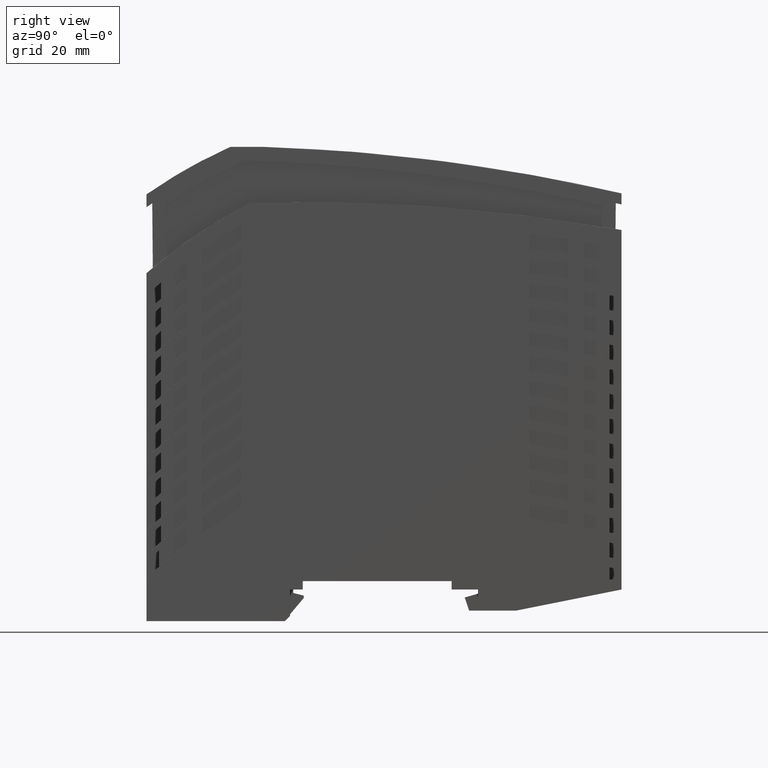
[diagram: clean part render]
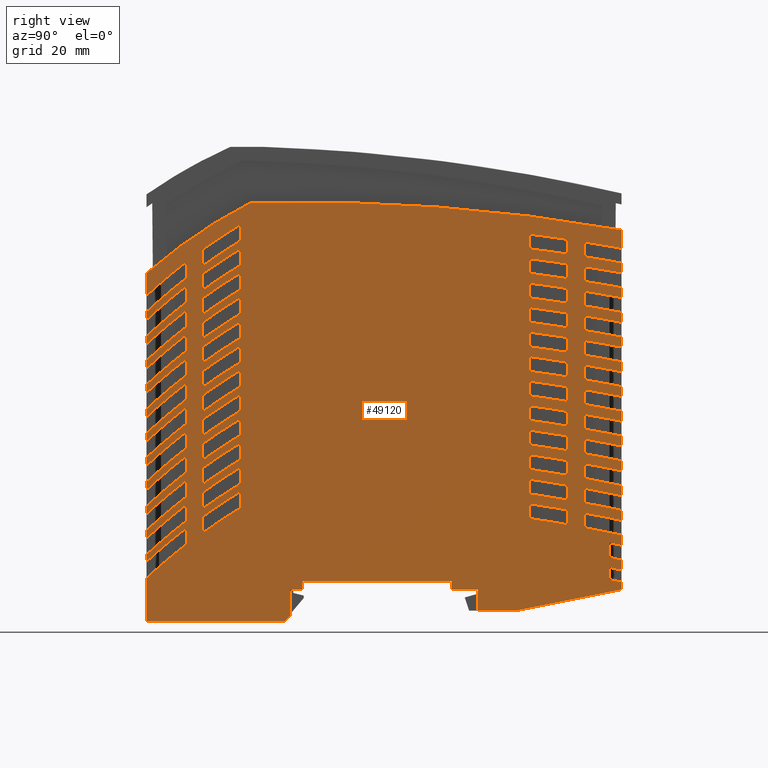
[diagram: same view with one face highlighted and labeled with its STEP entity id]
A machine part, right view. The second image highlights one B-rep face of the part: STEP entity #49120.
In plain terms, the highlighted planar face has unit normal (1, 0, 0).
Its self-contained STEP definition (entity closure, byte-faithful):
#5000=CARTESIAN_POINT('',(-45.0015236073532,0.029072276211352,1.));
#5010=VERTEX_POINT('',#5000);
#5040=CARTESIAN_POINT('',(0.,0.029072276211352,1.));
#5050=DIRECTION('',(-1.,0.,0.));
#5060=VECTOR('',#5050,1.);
#5070=LINE('',#5040,#5060);
#5080=CARTESIAN_POINT('',(-18.8015236073701,0.0290722762113518,1.));
#5090=VERTEX_POINT('',#5080);
#5100=EDGE_CURVE('',#5090,#5010,#5070,.T.);
#5700=CARTESIAN_POINT('',(-15.4015236073532,6.02907227621135,1.));
#5710=VERTEX_POINT('',#5700);
#5740=CARTESIAN_POINT('',(-15.4015236073532,0.,1.));
#5750=DIRECTION('',(0.,1.,0.));
#5760=VECTOR('',#5750,1.);
#5770=LINE('',#5740,#5760);
#5780=CARTESIAN_POINT('',(-15.4015236073532,7.62907227621024,1.));
#5790=VERTEX_POINT('',#5780);
#5800=EDGE_CURVE('',#5710,#5790,#5770,.T.);
#8860=CARTESIAN_POINT('',(0.,18.8305958835815,1.));
#8870=DIRECTION('',(-0.707106781186548,-0.707106781186547,0.));
#8880=VECTOR('',#8870,1.);
#8890=LINE('',#8860,#8880);
#8900=CARTESIAN_POINT('',(-17.8015236073701,1.02907227621133,1.));
#8910=VERTEX_POINT('',#8900);
#8920=EDGE_CURVE('',#8910,#5090,#8890,.T.);
#31650=CARTESIAN_POINT('',(-0.00152360735317814,90.0290722762114,1.));
#31660=DIRECTION('',(0.,0.,1.));
#31670=DIRECTION('',(-1.,0.,0.));
#31680=AXIS2_PLACEMENT_3D('',#31650,#31660,#31670);
#31690=PLANE('',#31680);
#31700=CARTESIAN_POINT('',(-15.9369906466324,-268.590217186319,1.));
#31710=DIRECTION('',(0.,0.,1.));
#31720=DIRECTION('',(0.,1.,0.));
#31730=AXIS2_PLACEMENT_3D('',#31700,#31710,#31720);
#31740=CIRCLE('',#31730,309.750005198827);
#31750=CARTESIAN_POINT('',(34.8684763926331,36.9648028012359,1.));
#31760=VERTEX_POINT('',#31750);
#31770=CARTESIAN_POINT('',(27.5384763926329,38.0935767878503,1.));
#31780=VERTEX_POINT('',#31770);
#31790=EDGE_CURVE('',#31760,#31780,#31740,.T.);
#31800=ORIENTED_EDGE('',*,*,#31790,.T.);
#31810=CARTESIAN_POINT('',(34.8684763926328,0.,1.));
#31820=DIRECTION('',(0.,1.,0.));
#31830=VECTOR('',#31820,1.);
#31840=LINE('',#31810,#31830);
#31850=CARTESIAN_POINT('',(34.8684763926326,39.7522134305012,1.));
#31860=VERTEX_POINT('',#31850);
#31870=EDGE_CURVE('',#31760,#31860,#31840,.T.);
#31880=ORIENTED_EDGE('',*,*,#31870,.F.);
#31890=CARTESIAN_POINT('',(-15.9369906467975,-268.590217187413,1.));
#31900=DIRECTION('',(0.,0.,-1.));
#31910=DIRECTION('',(0.,-1.,0.));
#31920=AXIS2_PLACEMENT_3D('',#31890,#31900,#31910);
#31930=CIRCLE('',#31920,312.500000000732);
#31940=CARTESIAN_POINT('',(27.5384763926328,40.8708203700819,1.));
#31950=VERTEX_POINT('',#31940);
#31960=EDGE_CURVE('',#31950,#31860,#31930,.T.);
#31970=ORIENTED_EDGE('',*,*,#31960,.T.);
#31980=CARTESIAN_POINT('',(27.5384763926329,0.,1.));
#31990=DIRECTION('',(0.,-1.,0.));
#32000=VECTOR('',#31990,1.);
#32010=LINE('',#31980,#32000);
#32020=EDGE_CURVE('',#31950,#31780,#32010,.T.);
#32030=ORIENTED_EDGE('',*,*,#32020,.F.);
#32040=EDGE_LOOP('',(#32030,#31970,#31880,#31800));
#32050=FACE_BOUND('',#32040,.T.);
#32060=CARTESIAN_POINT('',(-27.1415236073671,0.,1.));
#32070=DIRECTION('',(0.,1.,0.));
#32080=VECTOR('',#32070,1.);
#32090=LINE('',#32060,#32080);
#32100=CARTESIAN_POINT('',(-27.1415236073678,53.7090722762517,1.));
#32110=VERTEX_POINT('',#32100);
#32120=CARTESIAN_POINT('',(-27.1415236073677,56.8090722762517,1.));
#32130=VERTEX_POINT('',#32120);
#32140=EDGE_CURVE('',#32110,#32130,#32090,.T.);
#32150=ORIENTED_EDGE('',*,*,#32140,.F.);
#32160=CARTESIAN_POINT('',(30.4869845880863,-38.0590205851944,1.));
#32170=DIRECTION('',(0.,0.,-1.));
#32180=DIRECTION('',(0.,-1.,0.));
#32190=AXIS2_PLACEMENT_3D('',#32160,#32170,#32180);
#32200=CIRCLE('',#32190,111.000000000007);
#32210=CARTESIAN_POINT('',(-34.4715236073671,51.9487135992782,1.));
#32220=VERTEX_POINT('',#32210);
#32230=EDGE_CURVE('',#32220,#32130,#32200,.T.);
#32240=ORIENTED_EDGE('',*,*,#32230,.T.);
#32250=CARTESIAN_POINT('',(-34.4715236073671,0.,1.));
#32260=DIRECTION('',(0.,-1.,0.));
#32270=VECTOR('',#32260,1.);
#32280=LINE('',#32250,#32270);
#32290=CARTESIAN_POINT('',(-34.4715236073682,48.8487135992775,1.));
#32300=VERTEX_POINT('',#32290);
#32310=EDGE_CURVE('',#32220,#32300,#32280,.T.);
#32320=ORIENTED_EDGE('',*,*,#32310,.F.);
#32330=CARTESIAN_POINT('',(30.4869845880835,-41.1590205851899,1.));
#32340=DIRECTION('',(0.,0.,1.));
#32350=DIRECTION('',(0.,1.,0.));
#32360=AXIS2_PLACEMENT_3D('',#32330,#32340,#32350);
#32370=CIRCLE('',#32360,111.000000000001);
#32380=EDGE_CURVE('',#32110,#32300,#32370,.T.);
#32390=ORIENTED_EDGE('',*,*,#32380,.T.);
#32400=EDGE_LOOP('',(#32390,#32320,#32240,#32150));
#32410=FACE_BOUND('',#32400,.T.);
#32420=CARTESIAN_POINT('',(34.8684763926328,0.,1.));
#32430=DIRECTION('',(0.,1.,0.));
#32440=VECTOR('',#32430,1.);
#32450=LINE('',#32420,#32440);
#32460=CARTESIAN_POINT('',(34.8684763926329,69.555383868589,1.));
#32470=VERTEX_POINT('',#32460);
#32480=CARTESIAN_POINT('',(34.8684763926328,72.3451058863491,1.));
#32490=VERTEX_POINT('',#32480);
#32500=EDGE_CURVE('',#32470,#32490,#32450,.T.);
#32510=ORIENTED_EDGE('',*,*,#32500,.F.);
#32520=CARTESIAN_POINT('',(-15.9369906466541,-268.590217186421,1.));
#32530=DIRECTION('',(0.,0.,-1.));
#32540=DIRECTION('',(0.,-1.,0.));
#32550=AXIS2_PLACEMENT_3D('',#32520,#32530,#32540);
#32560=CIRCLE('',#32550,344.699999999731);
#32570=CARTESIAN_POINT('',(27.5384763926329,73.3571088237849,1.));
#32580=VERTEX_POINT('',#32570);
#32590=EDGE_CURVE('',#32580,#32490,#32560,.T.);
#32600=ORIENTED_EDGE('',*,*,#32590,.T.);
#32610=CARTESIAN_POINT('',(27.5384763926329,0.,1.));
#32620=DIRECTION('',(0.,-1.,0.));
#32630=VECTOR('',#32620,1.);
#32640=LINE('',#32610,#32630);
#32650=CARTESIAN_POINT('',(27.5384763926329,70.5757108777786,1.));
#32660=VERTEX_POINT('',#32650);
#32670=EDGE_CURVE('',#32580,#32660,#32640,.T.);
#32680=ORIENTED_EDGE('',*,*,#32670,.F.);
#32690=CARTESIAN_POINT('',(-15.9369906466847,-268.590217186677,1.));
#32700=DIRECTION('',(0.,0.,1.));
#32710=DIRECTION('',(0.,1.,0.));
#32720=AXIS2_PLACEMENT_3D('',#32690,#32700,#32710);
#32730=CIRCLE('',#32720,341.940993439088);
#32740=EDGE_CURVE('',#32470,#32660,#32730,.T.);
#32750=ORIENTED_EDGE('',*,*,#32740,.T.);
#32760=EDGE_LOOP('',(#32750,#32680,#32600,#32510));
#32770=FACE_BOUND('',#32760,.T.);
#32780=CARTESIAN_POINT('',(34.8684763926329,0.,1.));
#32790=DIRECTION('',(0.,1.,0.));
#32800=VECTOR('',#32790,1.);
#32810=LINE('',#32780,#32800);
#32820=CARTESIAN_POINT('',(34.8684763926331,50.9417781148335,1.));
#32830=VERTEX_POINT('',#32820);
#32840=CARTESIAN_POINT('',(34.8684763926328,53.7302669884825,1.));
#32850=VERTEX_POINT('',#32840);
#32860=EDGE_CURVE('',#32830,#32850,#32810,.T.);
#32870=ORIENTED_EDGE('',*,*,#32860,.F.);
#32880=CARTESIAN_POINT('',(-15.9369906466837,-268.59021718668,1.));
#32890=DIRECTION('',(0.,0.,-1.));
#32900=DIRECTION('',(0.,-1.,0.));
#32910=AXIS2_PLACEMENT_3D('',#32880,#32890,#32900);
#32920=CIRCLE('',#32910,326.299999999991);
#32930=CARTESIAN_POINT('',(27.5384763926328,54.8005275258234,1.));
#32940=VERTEX_POINT('',#32930);
#32950=EDGE_CURVE('',#32940,#32850,#32920,.T.);
#32960=ORIENTED_EDGE('',*,*,#32950,.T.);
#32970=CARTESIAN_POINT('',(27.5384763926329,0.,1.));
#32980=DIRECTION('',(0.,-1.,0.));
#32990=VECTOR('',#32980,1.);
#33000=LINE('',#32970,#32990);
#33010=CARTESIAN_POINT('',(27.5384763926331,52.0213472774904,1.));
#33020=VERTEX_POINT('',#33010);
#33030=EDGE_CURVE('',#32940,#33020,#33000,.T.);
#33040=ORIENTED_EDGE('',*,*,#33030,.F.);
#33050=CARTESIAN_POINT('',(-15.9369906466918,-268.590217186723,1.));
#33060=DIRECTION('',(0.,0.,1.));
#33070=DIRECTION('',(0.,1.,0.));
#33080=AXIS2_PLACEMENT_3D('',#33050,#33060,#33070);
#33090=CIRCLE('',#33080,323.545810516035);
#33100=EDGE_CURVE('',#32830,#33020,#33090,.T.);
#33110=ORIENTED_EDGE('',*,*,#33100,.T.);
#33120=EDGE_LOOP('',(#33110,#33040,#32960,#32870));
#33130=FACE_BOUND('',#33120,.T.);
#33140=CARTESIAN_POINT('',(-27.1415236073671,0.,1.));
#33150=DIRECTION('',(0.,1.,0.));
#33160=VECTOR('',#33150,1.);
#33170=LINE('',#33140,#33160);
#33180=CARTESIAN_POINT('',(-27.1415236073671,30.7090722762521,1.));
#33190=VERTEX_POINT('',#33180);
#33200=CARTESIAN_POINT('',(-27.1415236073671,33.8090722762522,1.));
#33210=VERTEX_POINT('',#33200);
#33220=EDGE_CURVE('',#33190,#33210,#33170,.T.);
#33230=ORIENTED_EDGE('',*,*,#33220,.F.);
#33240=CARTESIAN_POINT('',(30.4869845881102,-61.0590205852294,1.));
#33250=DIRECTION('',(0.,0.,-1.));
#33260=DIRECTION('',(0.,-1.,0.));
#33270=AXIS2_PLACEMENT_3D('',#33240,#33250,#33260);
#33280=CIRCLE('',#33270,111.000000000049);
#33290=CARTESIAN_POINT('',(-34.4715236073671,28.9487135992783,1.));
#33300=VERTEX_POINT('',#33290);
#33310=EDGE_CURVE('',#33300,#33210,#33280,.T.);
#33320=ORIENTED_EDGE('',*,*,#33310,.T.);
#33330=CARTESIAN_POINT('',(-34.4715236073671,0.,1.));
#33340=DIRECTION('',(0.,-1.,0.));
#33350=VECTOR('',#33340,1.);
#33360=LINE('',#33330,#33350);
#33370=CARTESIAN_POINT('',(-34.4715236073671,25.8487135992783,1.));
#33380=VERTEX_POINT('',#33370);
#33390=EDGE_CURVE('',#33300,#33380,#33360,.T.);
#33400=ORIENTED_EDGE('',*,*,#33390,.F.);
#33410=CARTESIAN_POINT('',(30.4869845880735,-64.1590205851745,1.));
#33420=DIRECTION('',(0.,0.,1.));
#33430=DIRECTION('',(0.,1.,0.));
#33440=AXIS2_PLACEMENT_3D('',#33410,#33420,#33430);
#33450=CIRCLE('',#33440,110.999999999983);
#33460=EDGE_CURVE('',#33190,#33380,#33450,.T.);
#33470=ORIENTED_EDGE('',*,*,#33460,.T.);
#33480=EDGE_LOOP('',(#33470,#33400,#33320,#33230));
#33490=FACE_BOUND('',#33480,.T.);
#33500=CARTESIAN_POINT('',(-34.4715236073671,0.,1.));
#33510=DIRECTION('',(0.,-1.,0.));
#33520=VECTOR('',#33510,1.);
#33530=LINE('',#33500,#33520);
#33540=CARTESIAN_POINT('',(-34.4715236073671,56.5487135992783,1.));
#33550=VERTEX_POINT('',#33540);
#33560=CARTESIAN_POINT('',(-34.4715236073671,53.448713599276,1.));
#33570=VERTEX_POINT('',#33560);
#33580=EDGE_CURVE('',#33550,#33570,#33530,.T.);
#33590=ORIENTED_EDGE('',*,*,#33580,.F.);
#33600=CARTESIAN_POINT('',(30.4869845880994,-36.5590205852144,1.));
#33610=DIRECTION('',(0.,0.,1.));
#33620=DIRECTION('',(0.,1.,0.));
#33630=AXIS2_PLACEMENT_3D('',#33600,#33610,#33620);
#33640=CIRCLE('',#33630,111.000000000031);
#33650=CARTESIAN_POINT('',(-27.1415236073677,58.3090722762517,1.));
#33660=VERTEX_POINT('',#33650);
#33670=EDGE_CURVE('',#33660,#33570,#33640,.T.);
#33680=ORIENTED_EDGE('',*,*,#33670,.T.);
#33690=CARTESIAN_POINT('',(-27.1415236073761,0.,1.));
#33700=DIRECTION('',(0.,1.,0.));
#33710=VECTOR('',#33700,1.);
#33720=LINE('',#33690,#33710);
#33730=CARTESIAN_POINT('',(-27.1415236073761,61.4090722762466,1.));
#33740=VERTEX_POINT('',#33730);
#33750=EDGE_CURVE('',#33660,#33740,#33720,.T.);
#33760=ORIENTED_EDGE('',*,*,#33750,.F.);
#33770=CARTESIAN_POINT('',(30.4869845880823,-33.4590205851883,1.));
#33780=DIRECTION('',(0.,0.,-1.));
#33790=DIRECTION('',(0.,-1.,0.));
#33800=AXIS2_PLACEMENT_3D('',#33770,#33780,#33790);
#33810=CIRCLE('',#33800,110.999999999999);
#33820=EDGE_CURVE('',#33550,#33740,#33810,.T.);
#33830=ORIENTED_EDGE('',*,*,#33820,.T.);
#33840=EDGE_LOOP('',(#33830,#33760,#33680,#33590));
#33850=FACE_BOUND('',#33840,.T.);
#33860=CARTESIAN_POINT('',(34.8684763926302,0.,1.));
#33870=DIRECTION('',(0.,1.,0.));
#33880=VECTOR('',#33870,1.);
#33890=LINE('',#33860,#33880);
#33900=CARTESIAN_POINT('',(34.8684763926302,60.2515519747454,1.));
#33910=VERTEX_POINT('',#33900);
#33920=CARTESIAN_POINT('',(34.8684763926302,63.0406838447394,1.));
#33930=VERTEX_POINT('',#33920);
#33940=EDGE_CURVE('',#33910,#33930,#33890,.T.);
#33950=ORIENTED_EDGE('',*,*,#33940,.F.);
#33960=CARTESIAN_POINT('',(-15.9369906466944,-268.590217186712,1.));
#33970=DIRECTION('',(0.,0.,-1.));
#33980=DIRECTION('',(0.,-1.,0.));
#33990=AXIS2_PLACEMENT_3D('',#33960,#33970,#33980);
#34000=CIRCLE('',#33990,335.500000000024);
#34010=CARTESIAN_POINT('',(27.5384763926329,64.0809925169962,1.));
#34020=VERTEX_POINT('',#34010);
#34030=EDGE_CURVE('',#34020,#33930,#34000,.T.);
#34040=ORIENTED_EDGE('',*,*,#34030,.T.);
#34050=CARTESIAN_POINT('',(27.5384763926329,0.,1.));
#34060=DIRECTION('',(0.,-1.,0.));
#34070=VECTOR('',#34060,1.);
#34080=LINE('',#34050,#34070);
#34090=CARTESIAN_POINT('',(27.5384763926329,61.300656273033,1.));
#34100=VERTEX_POINT('',#34090);
#34110=EDGE_CURVE('',#34020,#34100,#34080,.T.);
#34120=ORIENTED_EDGE('',*,*,#34110,.F.);
#34130=CARTESIAN_POINT('',(-15.9369906467551,-268.590217187168,1.));
#34140=DIRECTION('',(0.,0.,1.));
#34150=DIRECTION('',(0.,1.,0.));
#34160=AXIS2_PLACEMENT_3D('',#34130,#34140,#34150);
#34170=CIRCLE('',#34160,332.743301400084);
#34180=EDGE_CURVE('',#33910,#34100,#34170,.T.);
#34190=ORIENTED_EDGE('',*,*,#34180,.T.);
#34200=EDGE_LOOP('',(#34190,#34120,#34040,#33950));
#34210=FACE_BOUND('',#34200,.T.);
#34220=CARTESIAN_POINT('',(34.868476392629,0.,1.));
#34230=DIRECTION('',(0.,1.,0.));
#34240=VECTOR('',#34230,1.);
#34250=LINE('',#34220,#34240);
#34260=CARTESIAN_POINT('',(34.868476392629,32.3022259785125,1.));
#34270=VERTEX_POINT('',#34260);
#34280=CARTESIAN_POINT('',(34.8684763926289,35.0892429664751,1.));
#34290=VERTEX_POINT('',#34280);
#34300=EDGE_CURVE('',#34270,#34290,#34250,.T.);
#34310=ORIENTED_EDGE('',*,*,#34300,.F.);
#34320=CARTESIAN_POINT('',(-15.9369906467415,-268.590217187041,1.));
#34330=DIRECTION('',(0.,0.,-1.));
#34340=DIRECTION('',(0.,-1.,0.));
#34350=AXIS2_PLACEMENT_3D('',#34320,#34330,#34340);
#34360=CIRCLE('',#34350,307.900000000357);
#34370=CARTESIAN_POINT('',(27.5384763926328,36.2249624971864,1.));
#34380=VERTEX_POINT('',#34370);
#34390=EDGE_CURVE('',#34380,#34290,#34360,.T.);
#34400=ORIENTED_EDGE('',*,*,#34390,.T.);
#34410=CARTESIAN_POINT('',(27.5384763926329,0.,1.));
#34420=DIRECTION('',(0.,-1.,0.));
#34430=VECTOR('',#34420,1.);
#34440=LINE('',#34410,#34430);
#34450=CARTESIAN_POINT('',(27.5384763926329,33.448425375353,1.));
#34460=VERTEX_POINT('',#34450);
#34470=EDGE_CURVE('',#34380,#34460,#34440,.T.);
#34480=ORIENTED_EDGE('',*,*,#34470,.F.);
#34490=CARTESIAN_POINT('',(-15.9369906467193,-268.590217186892,1.));
#34500=DIRECTION('',(0.,0.,1.));
#34510=DIRECTION('',(0.,1.,0.));
#34520=AXIS2_PLACEMENT_3D('',#34490,#34500,#34510);
#34530=CIRCLE('',#34520,305.151532578706);
#34540=EDGE_CURVE('',#34270,#34460,#34530,.T.);
#34550=ORIENTED_EDGE('',*,*,#34540,.T.);
#34560=EDGE_LOOP('',(#34550,#34480,#34400,#34310));
#34570=FACE_BOUND('',#34560,.T.);
#34580=CARTESIAN_POINT('',(-27.1415236073671,0.,1.));
#34590=DIRECTION('',(0.,1.,0.));
#34600=VECTOR('',#34590,1.);
#34610=LINE('',#34580,#34600);
#34620=CARTESIAN_POINT('',(-27.1415236073671,21.5090722762507,1.));
#34630=VERTEX_POINT('',#34620);
#34640=CARTESIAN_POINT('',(-27.1415236073671,24.6090722762521,1.));
#34650=VERTEX_POINT('',#34640);
#34660=EDGE_CURVE('',#34630,#34650,#34610,.T.);
#34670=ORIENTED_EDGE('',*,*,#34660,.F.);
#34680=CARTESIAN_POINT('',(30.486984588119,-70.2590205852444,1.));
#34690=DIRECTION('',(0.,0.,-1.));
#34700=DIRECTION('',(0.,-1.,0.));
#34710=AXIS2_PLACEMENT_3D('',#34680,#34690,#34700);
#34720=CIRCLE('',#34710,111.000000000066);
#34730=CARTESIAN_POINT('',(-34.4715236073671,19.7487135992783,1.));
#34740=VERTEX_POINT('',#34730);
#34750=EDGE_CURVE('',#34740,#34650,#34720,.T.);
#34760=ORIENTED_EDGE('',*,*,#34750,.T.);
#34770=CARTESIAN_POINT('',(-34.4715236073671,0.,1.));
#34780=DIRECTION('',(0.,-1.,0.));
#34790=VECTOR('',#34780,1.);
#34800=LINE('',#34770,#34790);
#34810=CARTESIAN_POINT('',(-34.4715236073671,16.6487135992775,1.));
#34820=VERTEX_POINT('',#34810);
#34830=EDGE_CURVE('',#34740,#34820,#34800,.T.);
#34840=ORIENTED_EDGE('',*,*,#34830,.F.);
#34850=CARTESIAN_POINT('',(30.4869845880914,-73.3590205852016,1.));
#34860=DIRECTION('',(0.,0.,1.));
#34870=DIRECTION('',(0.,1.,0.));
#34880=AXIS2_PLACEMENT_3D('',#34850,#34860,#34870);
#34890=CIRCLE('',#34880,111.000000000015);
#34900=EDGE_CURVE('',#34630,#34820,#34890,.T.);
#34910=ORIENTED_EDGE('',*,*,#34900,.T.);
#34920=EDGE_LOOP('',(#34910,#34840,#34760,#34670));
#34930=FACE_BOUND('',#34920,.T.);
#34940=CARTESIAN_POINT('',(-27.1415236073761,0.,1.));
#34950=DIRECTION('',(0.,1.,0.));
#34960=VECTOR('',#34950,1.);
#34970=LINE('',#34940,#34960);
#34980=CARTESIAN_POINT('',(-27.1415236073761,62.9090722762466,1.));
#34990=VERTEX_POINT('',#34980);
#35000=CARTESIAN_POINT('',(-27.1415236073761,66.0090722762467,1.));
#35010=VERTEX_POINT('',#35000);
#35020=EDGE_CURVE('',#34990,#35010,#34970,.T.);
#35030=ORIENTED_EDGE('',*,*,#35020,.F.);
#35040=CARTESIAN_POINT('',(30.4869845880833,-28.8590205851891,1.));
#35050=DIRECTION('',(0.,0.,-1.));
#35060=DIRECTION('',(0.,-1.,0.));
#35070=AXIS2_PLACEMENT_3D('',#35040,#35050,#35060);
#35080=CIRCLE('',#35070,111.000000000001);
#35090=CARTESIAN_POINT('',(-34.4715236073671,61.1487135992783,1.));
#35100=VERTEX_POINT('',#35090);
#35110=EDGE_CURVE('',#35100,#35010,#35080,.T.);
#35120=ORIENTED_EDGE('',*,*,#35110,.T.);
#35130=CARTESIAN_POINT('',(-34.4715236073671,0.,1.));
#35140=DIRECTION('',(0.,-1.,0.));
#35150=VECTOR('',#35140,1.);
#35160=LINE('',#35130,#35150);
#35170=CARTESIAN_POINT('',(-34.4715236073671,58.0487135992782,1.));
#35180=VERTEX_POINT('',#35170);
#35190=EDGE_CURVE('',#35100,#35180,#35160,.T.);
#35200=ORIENTED_EDGE('',*,*,#35190,.F.);
#35210=CARTESIAN_POINT('',(30.4869845880913,-31.959020585201,1.));
#35220=DIRECTION('',(0.,0.,1.));
#35230=DIRECTION('',(0.,1.,0.));
#35240=AXIS2_PLACEMENT_3D('',#35210,#35220,#35230);
#35250=CIRCLE('',#35240,111.000000000015);
#35260=EDGE_CURVE('',#34990,#35180,#35250,.T.);
#35270=ORIENTED_EDGE('',*,*,#35260,.T.);
#35280=EDGE_LOOP('',(#35270,#35200,#35120,#35030));
#35290=FACE_BOUND('',#35280,.T.);
#35300=CARTESIAN_POINT('',(34.8684763926329,0.,1.));
#35310=DIRECTION('',(0.,1.,0.));
#35320=VECTOR('',#35310,1.);
#35330=LINE('',#35300,#35320);
#35340=CARTESIAN_POINT('',(34.868476392633,41.6255339054006,1.));
#35350=VERTEX_POINT('',#35340);
#35360=CARTESIAN_POINT('',(34.8684763926327,44.413320363475,1.));
#35370=VERTEX_POINT('',#35360);
#35380=EDGE_CURVE('',#35350,#35370,#35330,.T.);
#35390=ORIENTED_EDGE('',*,*,#35380,.F.);
#35400=CARTESIAN_POINT('',(-15.9369906466925,-268.590217186715,1.));
#35410=DIRECTION('',(0.,0.,-1.));
#35420=DIRECTION('',(0.,-1.,0.));
#35430=AXIS2_PLACEMENT_3D('',#35400,#35410,#35420);
#35440=CIRCLE('',#35430,317.100000000027);
#35450=CARTESIAN_POINT('',(27.5384763926328,45.5153283958641,1.));
#35460=VERTEX_POINT('',#35450);
#35470=EDGE_CURVE('',#35460,#35370,#35440,.T.);
#35480=ORIENTED_EDGE('',*,*,#35470,.T.);
#35490=CARTESIAN_POINT('',(27.5384763926329,0.,1.));
#35500=DIRECTION('',(0.,-1.,0.));
#35510=VECTOR('',#35500,1.);
#35520=LINE('',#35490,#35510);
#35530=CARTESIAN_POINT('',(27.538476392633,42.7374100365077,1.));
#35540=VERTEX_POINT('',#35530);
#35550=EDGE_CURVE('',#35460,#35540,#35520,.T.);
#35560=ORIENTED_EDGE('',*,*,#35550,.F.);
#35570=CARTESIAN_POINT('',(-15.9369906467089,-268.590217186839,1.));
#35580=DIRECTION('',(0.,0.,1.));
#35590=DIRECTION('',(0.,1.,0.));
#35600=AXIS2_PLACEMENT_3D('',#35570,#35580,#35590);
#35610=CIRCLE('',#35600,314.348544941452);
#35620=EDGE_CURVE('',#35350,#35540,#35610,.T.);
#35630=ORIENTED_EDGE('',*,*,#35620,.T.);
#35640=EDGE_LOOP('',(#35630,#35560,#35480,#35390));
#35650=FACE_BOUND('',#35640,.T.);
#35660=CARTESIAN_POINT('',(34.8684763926328,0.,1.));
#35670=DIRECTION('',(0.,1.,0.));
#35680=VECTOR('',#35670,1.);
#35690=LINE('',#35660,#35680);
#35700=CARTESIAN_POINT('',(34.8684763926328,18.3025331536801,1.));
#35710=VERTEX_POINT('',#35700);
#35720=CARTESIAN_POINT('',(34.8684763926328,21.0882502887463,1.));
#35730=VERTEX_POINT('',#35720);
#35740=EDGE_CURVE('',#35710,#35730,#35690,.T.);
#35750=ORIENTED_EDGE('',*,*,#35740,.F.);
#35760=CARTESIAN_POINT('',(-15.936990646676,-268.590217186613,1.));
#35770=DIRECTION('',(0.,0.,-1.));
#35780=DIRECTION('',(0.,-1.,0.));
#35790=AXIS2_PLACEMENT_3D('',#35760,#35770,#35780);
#35800=CIRCLE('',#35790,294.099999999924);
#35810=CARTESIAN_POINT('',(27.5384763926329,22.278642895846,1.));
#35820=VERTEX_POINT('',#35810);
#35830=EDGE_CURVE('',#35820,#35730,#35800,.T.);
#35840=ORIENTED_EDGE('',*,*,#35830,.T.);
#35850=CARTESIAN_POINT('',(27.5384763926329,0.,1.));
#35860=DIRECTION('',(0.,-1.,0.));
#35870=VECTOR('',#35860,1.);
#35880=LINE('',#35850,#35870);
#35890=CARTESIAN_POINT('',(27.5384763926329,19.5044364337102,1.));
#35900=VERTEX_POINT('',#35890);
#35910=EDGE_CURVE('',#35820,#35900,#35880,.T.);
#35920=ORIENTED_EDGE('',*,*,#35910,.F.);
#35930=CARTESIAN_POINT('',(-15.9369906467176,-268.59021718689,1.));
#35940=DIRECTION('',(0.,0.,1.));
#35950=DIRECTION('',(0.,1.,0.));
#35960=AXIS2_PLACEMENT_3D('',#35930,#35940,#35950);
#35970=CIRCLE('',#35960,291.356561070904);
#35980=EDGE_CURVE('',#35710,#35900,#35970,.T.);
#35990=ORIENTED_EDGE('',*,*,#35980,.T.);
#36000=EDGE_LOOP('',(#35990,#35920,#35840,#35750));
#36010=FACE_BOUND('',#36000,.T.);
#36020=CARTESIAN_POINT('',(30.4869845880657,-27.3590205851626,1.));
#36030=DIRECTION('',(0.,0.,1.));
#36040=DIRECTION('',(0.,1.,0.));
#36050=AXIS2_PLACEMENT_3D('',#36020,#36030,#36040);
#36060=CIRCLE('',#36050,110.999999999969);
#36070=CARTESIAN_POINT('',(-27.1415236073762,67.509072276252,1.));
#36080=VERTEX_POINT('',#36070);
#36090=CARTESIAN_POINT('',(-34.4715236073702,62.6487135992761,1.));
#36100=VERTEX_POINT('',#36090);
#36110=EDGE_CURVE('',#36080,#36100,#36060,.T.);
#36120=ORIENTED_EDGE('',*,*,#36110,.T.);
#36130=CARTESIAN_POINT('',(-27.1415236073762,0.,1.));
#36140=DIRECTION('',(0.,1.,0.));
#36150=VECTOR('',#36140,1.);
#36160=LINE('',#36130,#36150);
#36170=CARTESIAN_POINT('',(-27.1415236073762,70.6090722762467,1.));
#36180=VERTEX_POINT('',#36170);
#36190=EDGE_CURVE('',#36080,#36180,#36160,.T.);
#36200=ORIENTED_EDGE('',*,*,#36190,.F.);
#36210=CARTESIAN_POINT('',(30.4869845880803,-24.259020585185,1.));
#36220=DIRECTION('',(0.,0.,-1.));
#36230=DIRECTION('',(0.,-1.,0.));
#36240=AXIS2_PLACEMENT_3D('',#36210,#36220,#36230);
#36250=CIRCLE('',#36240,110.999999999996);
#36260=CARTESIAN_POINT('',(-34.4715236073671,65.7487135992783,1.));
#36270=VERTEX_POINT('',#36260);
#36280=EDGE_CURVE('',#36270,#36180,#36250,.T.);
#36290=ORIENTED_EDGE('',*,*,#36280,.T.);
#36300=CARTESIAN_POINT('',(-34.4715236073671,0.,1.));
#36310=DIRECTION('',(0.,-1.,0.));
#36320=VECTOR('',#36310,1.);
#36330=LINE('',#36300,#36320);
#36340=EDGE_CURVE('',#36270,#36100,#36330,.T.);
#36350=ORIENTED_EDGE('',*,*,#36340,.F.);
#36360=EDGE_LOOP('',(#36350,#36290,#36200,#36120));
#36370=FACE_BOUND('',#36360,.T.);
#36380=CARTESIAN_POINT('',(-34.4715236073671,0.,1.));
#36390=DIRECTION('',(0.,-1.,0.));
#36400=VECTOR('',#36390,1.);
#36410=LINE('',#36380,#36400);
#36420=CARTESIAN_POINT('',(-34.4715236073671,42.7487135992782,1.));
#36430=VERTEX_POINT('',#36420);
#36440=CARTESIAN_POINT('',(-34.4715236073671,39.6487135992776,1.));
#36450=VERTEX_POINT('',#36440);
#36460=EDGE_CURVE('',#36430,#36450,#36410,.T.);
#36470=ORIENTED_EDGE('',*,*,#36460,.F.);
#36480=CARTESIAN_POINT('',(30.4869845880913,-50.3590205852012,1.));
#36490=DIRECTION('',(0.,0.,1.));
#36500=DIRECTION('',(0.,1.,0.));
#36510=AXIS2_PLACEMENT_3D('',#36480,#36490,#36500);
#36520=CIRCLE('',#36510,111.000000000015);
#36530=CARTESIAN_POINT('',(-27.1415236073761,44.5090722762467,1.));
#36540=VERTEX_POINT('',#36530);
#36550=EDGE_CURVE('',#36540,#36450,#36520,.T.);
#36560=ORIENTED_EDGE('',*,*,#36550,.T.);
#36570=CARTESIAN_POINT('',(-27.1415236073761,0.,1.));
#36580=DIRECTION('',(0.,1.,0.));
#36590=VECTOR('',#36580,1.);
#36600=LINE('',#36570,#36590);
#36610=CARTESIAN_POINT('',(-27.1415236073761,47.6090722762466,1.));
#36620=VERTEX_POINT('',#36610);
#36630=EDGE_CURVE('',#36540,#36620,#36600,.T.);
#36640=ORIENTED_EDGE('',*,*,#36630,.F.);
#36650=CARTESIAN_POINT('',(30.486984588101,-47.2590205852158,1.));
#36660=DIRECTION('',(0.,0.,-1.));
#36670=DIRECTION('',(0.,-1.,0.));
#36680=AXIS2_PLACEMENT_3D('',#36650,#36660,#36670);
#36690=CIRCLE('',#36680,111.000000000033);
#36700=EDGE_CURVE('',#36430,#36620,#36690,.T.);
#36710=ORIENTED_EDGE('',*,*,#36700,.T.);
#36720=EDGE_LOOP('',(#36710,#36640,#36560,#36470));
#36730=FACE_BOUND('',#36720,.T.);
#36740=CARTESIAN_POINT('',(-34.4715236073681,0.,1.));
#36750=DIRECTION('',(0.,-1.,0.));
#36760=VECTOR('',#36750,1.);
#36770=LINE('',#36740,#36760);
#36780=CARTESIAN_POINT('',(-34.4715236073671,70.3487135992783,1.));
#36790=VERTEX_POINT('',#36780);
#36800=CARTESIAN_POINT('',(-34.4715236073682,67.2487135992775,1.));
#36810=VERTEX_POINT('',#36800);
#36820=EDGE_CURVE('',#36790,#36810,#36770,.T.);
#36830=ORIENTED_EDGE('',*,*,#36820,.F.);
#36840=CARTESIAN_POINT('',(30.4869845880935,-22.7590205852045,1.));
#36850=DIRECTION('',(0.,0.,1.));
#36860=DIRECTION('',(0.,1.,0.));
#36870=AXIS2_PLACEMENT_3D('',#36840,#36850,#36860);
#36880=CIRCLE('',#36870,111.000000000019);
#36890=CARTESIAN_POINT('',(-27.1415236073678,72.1090722762518,1.));
#36900=VERTEX_POINT('',#36890);
#36910=EDGE_CURVE('',#36900,#36810,#36880,.T.);
#36920=ORIENTED_EDGE('',*,*,#36910,.T.);
#36930=CARTESIAN_POINT('',(-27.1415236073671,0.,1.));
#36940=DIRECTION('',(0.,1.,0.));
#36950=VECTOR('',#36940,1.);
#36960=LINE('',#36930,#36950);
#36970=CARTESIAN_POINT('',(-27.1415236073673,75.209072276252,1.));
#36980=VERTEX_POINT('',#36970);
#36990=EDGE_CURVE('',#36900,#36980,#36960,.T.);
#37000=ORIENTED_EDGE('',*,*,#36990,.F.);
#37010=CARTESIAN_POINT('',(30.4869845880738,-19.6590205851748,1.));
#37020=DIRECTION('',(0.,0.,-1.));
#37030=DIRECTION('',(0.,-1.,0.));
#37040=AXIS2_PLACEMENT_3D('',#37010,#37020,#37030);
#37050=CIRCLE('',#37040,110.999999999983);
#37060=EDGE_CURVE('',#36790,#36980,#37050,.T.);
#37070=ORIENTED_EDGE('',*,*,#37060,.T.);
#37080=EDGE_LOOP('',(#37070,#37000,#36920,#36830));
#37090=FACE_BOUND('',#37080,.T.);
#37100=CARTESIAN_POINT('',(30.4869845881021,-54.9590205852177,1.));
#37110=DIRECTION('',(0.,0.,1.));
#37120=DIRECTION('',(0.,1.,0.));
#37130=AXIS2_PLACEMENT_3D('',#37100,#37110,#37120);
#37140=CIRCLE('',#37130,111.000000000035);
#37150=CARTESIAN_POINT('',(-27.1415236073762,39.9090722762467,1.));
#37160=VERTEX_POINT('',#37150);
#37170=CARTESIAN_POINT('',(-34.4715236073672,35.0487135992783,1.));
#37180=VERTEX_POINT('',#37170);
#37190=EDGE_CURVE('',#37160,#37180,#37140,.T.);
#37200=ORIENTED_EDGE('',*,*,#37190,.T.);
#37210=CARTESIAN_POINT('',(-27.1415236073761,0.,1.));
#37220=DIRECTION('',(0.,1.,0.));
#37230=VECTOR('',#37220,1.);
#37240=LINE('',#37210,#37230);
#37250=CARTESIAN_POINT('',(-27.1415236073761,43.0090722762467,1.));
#37260=VERTEX_POINT('',#37250);
#37270=EDGE_CURVE('',#37160,#37260,#37240,.T.);
#37280=ORIENTED_EDGE('',*,*,#37270,.F.);
#37290=CARTESIAN_POINT('',(30.4869845881022,-51.8590205852178,1.));
#37300=DIRECTION('',(0.,0.,-1.));
#37310=DIRECTION('',(0.,-1.,0.));
#37320=AXIS2_PLACEMENT_3D('',#37290,#37300,#37310);
#37330=CIRCLE('',#37320,111.000000000035);
#37340=CARTESIAN_POINT('',(-34.4715236073671,38.1487135992783,1.));
#37350=VERTEX_POINT('',#37340);
#37360=EDGE_CURVE('',#37350,#37260,#37330,.T.);
#37370=ORIENTED_EDGE('',*,*,#37360,.T.);
#37380=CARTESIAN_POINT('',(-34.4715236073671,0.,1.));
#37390=DIRECTION('',(0.,-1.,0.));
#37400=VECTOR('',#37390,1.);
#37410=LINE('',#37380,#37400);
#37420=EDGE_CURVE('',#37350,#37180,#37410,.T.);
#37430=ORIENTED_EDGE('',*,*,#37420,.F.);
#37440=EDGE_LOOP('',(#37430,#37370,#37280,#37200));
#37450=FACE_BOUND('',#37440,.T.);
#37460=CARTESIAN_POINT('',(-15.9369906467038,-268.590217186791,1.));
#37470=DIRECTION('',(0.,0.,1.));
#37480=DIRECTION('',(0.,1.,0.));
#37490=AXIS2_PLACEMENT_3D('',#37460,#37470,#37480);
#37500=CIRCLE('',#37490,295.954805805004);
#37510=CARTESIAN_POINT('',(34.8684763926293,22.9711856051293,1.));
#37520=VERTEX_POINT('',#37510);
#37530=CARTESIAN_POINT('',(27.5384763926329,24.1539216867126,1.));
#37540=VERTEX_POINT('',#37530);
#37550=EDGE_CURVE('',#37520,#37540,#37500,.T.);
#37560=ORIENTED_EDGE('',*,*,#37550,.T.);
#37570=CARTESIAN_POINT('',(34.8684763926293,0.,1.));
#37580=DIRECTION('',(0.,1.,0.));
#37590=VECTOR('',#37580,1.);
#37600=LINE('',#37570,#37590);
#37610=CARTESIAN_POINT('',(34.8684763926293,25.7573571517402,1.));
#37620=VERTEX_POINT('',#37610);
#37630=EDGE_CURVE('',#37520,#37620,#37600,.T.);
#37640=ORIENTED_EDGE('',*,*,#37630,.F.);
#37650=CARTESIAN_POINT('',(-15.936990646765,-268.590217187165,1.));
#37660=DIRECTION('',(0.,0.,-1.));
#37670=DIRECTION('',(0.,-1.,0.));
#37680=AXIS2_PLACEMENT_3D('',#37650,#37660,#37670);
#37690=CIRCLE('',#37680,298.700000000482);
#37700=CARTESIAN_POINT('',(27.5384763926329,26.9289425402451,1.));
#37710=VERTEX_POINT('',#37700);
#37720=EDGE_CURVE('',#37710,#37620,#37690,.T.);
#37730=ORIENTED_EDGE('',*,*,#37720,.T.);
#37740=CARTESIAN_POINT('',(27.5384763926329,0.,1.));
#37750=DIRECTION('',(0.,-1.,0.));
#37760=VECTOR('',#37750,1.);
#37770=LINE('',#37740,#37760);
#37780=EDGE_CURVE('',#37710,#37540,#37770,.T.);
#37790=ORIENTED_EDGE('',*,*,#37780,.F.);
#37800=EDGE_LOOP('',(#37790,#37730,#37640,#37560));
#37810=FACE_BOUND('',#37800,.T.);
#37820=CARTESIAN_POINT('',(34.8684763926328,0.,1.));
#37830=DIRECTION('',(0.,1.,0.));
#37840=VECTOR('',#37830,1.);
#37850=LINE('',#37820,#37840);
#37860=CARTESIAN_POINT('',(34.868476392633,46.2845002536193,1.));
#37870=VERTEX_POINT('',#37860);
#37880=CARTESIAN_POINT('',(34.8684763926327,49.0726457968786,1.));
#37890=VERTEX_POINT('',#37880);
#37900=EDGE_CURVE('',#37870,#37890,#37850,.T.);
#37910=ORIENTED_EDGE('',*,*,#37900,.F.);
#37920=CARTESIAN_POINT('',(-15.9369906467313,-268.590217186983,1.));
#37930=DIRECTION('',(0.,0.,-1.));
#37940=DIRECTION('',(0.,-1.,0.));
#37950=AXIS2_PLACEMENT_3D('',#37920,#37930,#37940);
#37960=CIRCLE('',#37950,321.700000000298);
#37970=CARTESIAN_POINT('',(27.5384763926327,50.1585455806562,1.));
#37980=VERTEX_POINT('',#37970);
#37990=EDGE_CURVE('',#37980,#37890,#37960,.T.);
#38000=ORIENTED_EDGE('',*,*,#37990,.T.);
#38010=CARTESIAN_POINT('',(27.5384763926329,0.,1.));
#38020=DIRECTION('',(0.,-1.,0.));
#38030=VECTOR('',#38020,1.);
#38040=LINE('',#38010,#38030);
#38050=CARTESIAN_POINT('',(27.538476392633,47.3799822465968,1.));
#38060=VERTEX_POINT('',#38050);
#38070=EDGE_CURVE('',#37980,#38060,#38040,.T.);
#38080=ORIENTED_EDGE('',*,*,#38070,.F.);
#38090=CARTESIAN_POINT('',(-15.9369906466885,-268.590217186712,1.));
#38100=DIRECTION('',(0.,0.,1.));
#38110=DIRECTION('',(0.,1.,0.));
#38120=AXIS2_PLACEMENT_3D('',#38090,#38100,#38110);
#38130=CIRCLE('',#38120,318.947147916724);
#38140=EDGE_CURVE('',#37870,#38060,#38130,.T.);
#38150=ORIENTED_EDGE('',*,*,#38140,.T.);
#38160=EDGE_LOOP('',(#38150,#38080,#38000,#37910));
#38170=FACE_BOUND('',#38160,.T.);
#38180=CARTESIAN_POINT('',(-15.936990646674,-268.590217186597,1.));
#38190=DIRECTION('',(0.,0.,1.));
#38200=DIRECTION('',(0.,1.,0.));
#38210=AXIS2_PLACEMENT_3D('',#38180,#38190,#38200);
#38220=CIRCLE('',#38210,300.553131271608);
#38230=CARTESIAN_POINT('',(34.8684763926328,27.6377174112158,1.));
#38240=VERTEX_POINT('',#38230);
#38250=CARTESIAN_POINT('',(27.5384763926329,28.801895154807,1.));
#38260=VERTEX_POINT('',#38250);
#38270=EDGE_CURVE('',#38240,#38260,#38220,.T.);
#38280=ORIENTED_EDGE('',*,*,#38270,.T.);
#38290=CARTESIAN_POINT('',(34.8684763926328,0.,1.));
#38300=DIRECTION('',(0.,1.,0.));
#38310=VECTOR('',#38300,1.);
#38320=LINE('',#38290,#38310);
#38330=CARTESIAN_POINT('',(34.8684763926327,30.424321789122,1.));
#38340=VERTEX_POINT('',#38330);
#38350=EDGE_CURVE('',#38240,#38340,#38320,.T.);
#38360=ORIENTED_EDGE('',*,*,#38350,.F.);
#38370=CARTESIAN_POINT('',(-15.9369906467827,-268.590217187302,1.));
#38380=DIRECTION('',(0.,0.,-1.));
#38390=DIRECTION('',(0.,-1.,0.));
#38400=AXIS2_PLACEMENT_3D('',#38370,#38380,#38390);
#38410=CIRCLE('',#38400,303.300000000621);
#38420=CARTESIAN_POINT('',(27.5384763926329,31.5776921002853,1.));
#38430=VERTEX_POINT('',#38420);
#38440=EDGE_CURVE('',#38430,#38340,#38410,.T.);
#38450=ORIENTED_EDGE('',*,*,#38440,.T.);
#38460=CARTESIAN_POINT('',(27.5384763926329,0.,1.));
#38470=DIRECTION('',(0.,-1.,0.));
#38480=VECTOR('',#38470,1.);
#38490=LINE('',#38460,#38480);
#38500=EDGE_CURVE('',#38430,#38260,#38490,.T.);
#38510=ORIENTED_EDGE('',*,*,#38500,.F.);
#38520=EDGE_LOOP('',(#38510,#38450,#38360,#38280));
#38530=FACE_BOUND('',#38520,.T.);
#38540=CARTESIAN_POINT('',(-34.4715236073671,0.,1.));
#38550=DIRECTION('',(0.,-1.,0.));
#38560=VECTOR('',#38550,1.);
#38570=LINE('',#38540,#38560);
#38580=CARTESIAN_POINT('',(-34.4715236073671,24.3487135992711,1.));
#38590=VERTEX_POINT('',#38580);
#38600=CARTESIAN_POINT('',(-34.4715236073671,21.2487135992783,1.));
#38610=VERTEX_POINT('',#38600);
#38620=EDGE_CURVE('',#38590,#38610,#38570,.T.);
#38630=ORIENTED_EDGE('',*,*,#38620,.F.);
#38640=CARTESIAN_POINT('',(30.4869845880688,-68.7590205851679,1.));
#38650=DIRECTION('',(0.,0.,1.));
#38660=DIRECTION('',(0.,1.,0.));
#38670=AXIS2_PLACEMENT_3D('',#38640,#38650,#38660);
#38680=CIRCLE('',#38670,110.999999999975);
#38690=CARTESIAN_POINT('',(-27.1415236073671,26.1090722762521,1.));
#38700=VERTEX_POINT('',#38690);
#38710=EDGE_CURVE('',#38700,#38610,#38680,.T.);
#38720=ORIENTED_EDGE('',*,*,#38710,.T.);
#38730=CARTESIAN_POINT('',(-27.1415236073671,0.,1.));
#38740=DIRECTION('',(0.,1.,0.));
#38750=VECTOR('',#38740,1.);
#38760=LINE('',#38730,#38750);
#38770=CARTESIAN_POINT('',(-27.1415236073671,29.2090722762461,1.));
#38780=VERTEX_POINT('',#38770);
#38790=EDGE_CURVE('',#38700,#38780,#38760,.T.);
#38800=ORIENTED_EDGE('',*,*,#38790,.F.);
#38810=CARTESIAN_POINT('',(30.4869845881222,-65.6590205852324,1.));
#38820=DIRECTION('',(0.,0.,-1.));
#38830=DIRECTION('',(0.,-1.,0.));
#38840=AXIS2_PLACEMENT_3D('',#38810,#38820,#38830);
#38850=CIRCLE('',#38840,111.000000000053);
#38860=EDGE_CURVE('',#38590,#38780,#38850,.T.);
#38870=ORIENTED_EDGE('',*,*,#38860,.T.);
#38880=EDGE_LOOP('',(#38870,#38800,#38720,#38630));
#38890=FACE_BOUND('',#38880,.T.);
#38900=CARTESIAN_POINT('',(-15.9369906466991,-268.590217186765,1.));
#38910=DIRECTION('',(0.,0.,1.));
#38920=DIRECTION('',(0.,1.,0.));
#38930=AXIS2_PLACEMENT_3D('',#38900,#38910,#38920);
#38940=CIRCLE('',#38930,328.144529384177);
#38950=CARTESIAN_POINT('',(34.868476392633,55.5974394007099,1.));
#38960=VERTEX_POINT('',#38950);
#38970=CARTESIAN_POINT('',(27.5384763926329,56.6615559529046,1.));
#38980=VERTEX_POINT('',#38970);
#38990=EDGE_CURVE('',#38960,#38980,#38940,.T.);
#39000=ORIENTED_EDGE('',*,*,#38990,.T.);
#39010=CARTESIAN_POINT('',(34.8684763926327,0.,1.));
#39020=DIRECTION('',(0.,1.,0.));
#39030=VECTOR('',#39020,1.);
#39040=LINE('',#39010,#39030);
#39050=CARTESIAN_POINT('',(34.8684763926326,58.3862567665861,1.));
#39060=VERTEX_POINT('',#39050);
#39070=EDGE_CURVE('',#38960,#39060,#39040,.T.);
#39080=ORIENTED_EDGE('',*,*,#39070,.F.);
#39090=CARTESIAN_POINT('',(-15.9369906467439,-268.590217187064,1.));
#39100=DIRECTION('',(0.,0.,-1.));
#39110=DIRECTION('',(0.,-1.,0.));
#39120=AXIS2_PLACEMENT_3D('',#39090,#39100,#39110);
#39130=CIRCLE('',#39120,330.90000000038);
#39140=CARTESIAN_POINT('',(27.5384763926329,59.4413266710828,1.));
#39150=VERTEX_POINT('',#39140);
#39160=EDGE_CURVE('',#39150,#39060,#39130,.T.);
#39170=ORIENTED_EDGE('',*,*,#39160,.T.);
#39180=CARTESIAN_POINT('',(27.5384763926329,0.,1.));
#39190=DIRECTION('',(0.,-1.,0.));
#39200=VECTOR('',#39190,1.);
#39210=LINE('',#39180,#39200);
#39220=EDGE_CURVE('',#39150,#38980,#39210,.T.);
#39230=ORIENTED_EDGE('',*,*,#39220,.F.);
#39240=EDGE_LOOP('',(#39230,#39170,#39080,#39000));
#39250=FACE_BOUND('',#39240,.T.);
#39260=CARTESIAN_POINT('',(-34.4715236073671,0.,1.));
#39270=DIRECTION('',(0.,-1.,0.));
#39280=VECTOR('',#39270,1.);
#39290=LINE('',#39260,#39280);
#39300=CARTESIAN_POINT('',(-34.4715236073671,47.3487135992711,1.));
#39310=VERTEX_POINT('',#39300);
#39320=CARTESIAN_POINT('',(-34.4715236073671,44.2487135992783,1.));
#39330=VERTEX_POINT('',#39320);
#39340=EDGE_CURVE('',#39310,#39330,#39290,.T.);
#39350=ORIENTED_EDGE('',*,*,#39340,.F.);
#39360=CARTESIAN_POINT('',(30.4869845881016,-45.7590205852164,1.));
#39370=DIRECTION('',(0.,0.,1.));
#39380=DIRECTION('',(0.,1.,0.));
#39390=AXIS2_PLACEMENT_3D('',#39360,#39370,#39380);
#39400=CIRCLE('',#39390,111.000000000034);
#39410=CARTESIAN_POINT('',(-27.1415236073692,49.1090722762522,1.));
#39420=VERTEX_POINT('',#39410);
#39430=EDGE_CURVE('',#39420,#39330,#39400,.T.);
#39440=ORIENTED_EDGE('',*,*,#39430,.T.);
#39450=CARTESIAN_POINT('',(-27.1415236073692,0.,1.));
#39460=DIRECTION('',(0.,1.,0.));
#39470=VECTOR('',#39460,1.);
#39480=LINE('',#39450,#39470);
#39490=CARTESIAN_POINT('',(-27.1415236073692,52.2090722762448,1.));
#39500=VERTEX_POINT('',#39490);
#39510=EDGE_CURVE('',#39420,#39500,#39480,.T.);
#39520=ORIENTED_EDGE('',*,*,#39510,.F.);
#39530=CARTESIAN_POINT('',(30.4869845881063,-42.6590205852088,1.));
#39540=DIRECTION('',(0.,0.,-1.));
#39550=DIRECTION('',(0.,-1.,0.));
#39560=AXIS2_PLACEMENT_3D('',#39530,#39540,#39550);
#39570=CIRCLE('',#39560,111.000000000024);
#39580=EDGE_CURVE('',#39310,#39500,#39570,.T.);
#39590=ORIENTED_EDGE('',*,*,#39580,.T.);
#39600=EDGE_LOOP('',(#39590,#39520,#39440,#39350));
#39610=FACE_BOUND('',#39600,.T.);
#39620=CARTESIAN_POINT('',(-27.1415236073761,0.,1.));
#39630=DIRECTION('',(0.,1.,0.));
#39640=VECTOR('',#39630,1.);
#39650=LINE('',#39620,#39640);
#39660=CARTESIAN_POINT('',(-27.1415236073762,35.3090722762467,1.));
#39670=VERTEX_POINT('',#39660);
#39680=CARTESIAN_POINT('',(-27.1415236073761,38.4090722762467,1.));
#39690=VERTEX_POINT('',#39680);
#39700=EDGE_CURVE('',#39670,#39690,#39650,.T.);
#39710=ORIENTED_EDGE('',*,*,#39700,.F.);
#39720=CARTESIAN_POINT('',(30.4869845880916,-56.4590205852006,1.));
#39730=DIRECTION('',(0.,0.,-1.));
#39740=DIRECTION('',(0.,-1.,0.));
#39750=AXIS2_PLACEMENT_3D('',#39720,#39730,#39740);
#39760=CIRCLE('',#39750,111.000000000015);
#39770=CARTESIAN_POINT('',(-34.4715236073671,33.5487135992783,1.));
#39780=VERTEX_POINT('',#39770);
#39790=EDGE_CURVE('',#39780,#39690,#39760,.T.);
#39800=ORIENTED_EDGE('',*,*,#39790,.T.);
#39810=CARTESIAN_POINT('',(-34.4715236073671,0.,1.));
#39820=DIRECTION('',(0.,-1.,0.));
#39830=VECTOR('',#39820,1.);
#39840=LINE('',#39810,#39830);
#39850=CARTESIAN_POINT('',(-34.4715236073671,30.4487135992783,1.));
#39860=VERTEX_POINT('',#39850);
#39870=EDGE_CURVE('',#39780,#39860,#39840,.T.);
#39880=ORIENTED_EDGE('',*,*,#39870,.F.);
#39890=CARTESIAN_POINT('',(30.486984588088,-59.5590205851967,1.));
#39900=DIRECTION('',(0.,0.,1.));
#39910=DIRECTION('',(0.,1.,0.));
#39920=AXIS2_PLACEMENT_3D('',#39890,#39900,#39910);
#39930=CIRCLE('',#39920,111.00000000001);
#39940=EDGE_CURVE('',#39670,#39860,#39930,.T.);
#39950=ORIENTED_EDGE('',*,*,#39940,.T.);
#39960=EDGE_LOOP('',(#39950,#39880,#39800,#39710));
#39970=FACE_BOUND('',#39960,.T.);
#39980=CARTESIAN_POINT('',(-15.9369906468577,-268.590217187914,1.));
#39990=DIRECTION('',(0.,0.,1.));
#40000=DIRECTION('',(0.,1.,0.));
#40010=AXIS2_PLACEMENT_3D('',#39980,#39990,#40000);
#40020=CIRCLE('',#40010,337.342123656137);
#40030=CARTESIAN_POINT('',(34.868476392633,64.9041799340342,1.));
#40040=VERTEX_POINT('',#40030);
#40050=CARTESIAN_POINT('',(27.5384763926329,65.9386936083439,1.));
#40060=VERTEX_POINT('',#40050);
#40070=EDGE_CURVE('',#40040,#40060,#40020,.T.);
#40080=ORIENTED_EDGE('',*,*,#40070,.T.);
#40090=CARTESIAN_POINT('',(34.8684763926329,0.,1.));
#40100=DIRECTION('',(0.,1.,0.));
#40110=VECTOR('',#40100,1.);
#40120=LINE('',#40090,#40110);
#40130=CARTESIAN_POINT('',(34.8684763926327,67.693613109858,1.));
#40140=VERTEX_POINT('',#40130);
#40150=EDGE_CURVE('',#40040,#40140,#40120,.T.);
#40160=ORIENTED_EDGE('',*,*,#40150,.F.);
#40170=CARTESIAN_POINT('',(-15.9369906467468,-268.590217187113,1.));
#40180=DIRECTION('',(0.,0.,-1.));
#40190=DIRECTION('',(0.,-1.,0.));
#40200=AXIS2_PLACEMENT_3D('',#40170,#40180,#40190);
#40210=CIRCLE('',#40200,340.100000000428);
#40220=CARTESIAN_POINT('',(27.5384763926329,68.7195718288586,1.));
#40230=VERTEX_POINT('',#40220);
#40240=EDGE_CURVE('',#40230,#40140,#40210,.T.);
#40250=ORIENTED_EDGE('',*,*,#40240,.T.);
#40260=CARTESIAN_POINT('',(27.5384763926329,0.,1.));
#40270=DIRECTION('',(0.,-1.,0.));
#40280=VECTOR('',#40270,1.);
#40290=LINE('',#40260,#40280);
#40300=EDGE_CURVE('',#40230,#40060,#40290,.T.);
#40310=ORIENTED_EDGE('',*,*,#40300,.F.);
#40320=EDGE_LOOP('',(#40310,#40250,#40160,#40080));
#40330=FACE_BOUND('',#40320,.T.);
#40340=CARTESIAN_POINT('',(19.7066423710768,-8.36763282685864,1.));
#40350=DIRECTION('',(0.,0.,1.));
#40360=DIRECTION('',(-0.455955103889732,0.890002777095051,0.));
#40370=AXIS2_PLACEMENT_3D('',#40340,#40350,#40360);
#40380=CIRCLE('',#40370,98.55);
#40390=CARTESIAN_POINT('',(-25.2277331172548,79.3421408558594,1.));
#40400=VERTEX_POINT('',#40390);
#40410=CARTESIAN_POINT('',(-45.0015236073532,65.9624132898226,1.));
#40420=VERTEX_POINT('',#40410);
#40430=EDGE_CURVE('',#40400,#40420,#40380,.T.);
#40440=ORIENTED_EDGE('',*,*,#40430,.T.);
#40450=CARTESIAN_POINT('',(-15.7001371396532,-268.577429468789,1.));
#40460=DIRECTION('',(0.,0.,1.));
#40470=DIRECTION('',(0.171523095912363,0.985180099052269,0.));
#40480=AXIS2_PLACEMENT_3D('',#40450,#40460,#40470);
#40490=CIRCLE('',#40480,348.05);
#40500=CARTESIAN_POINT('',(44.9984763926468,74.1388975645999,1.));
#40510=VERTEX_POINT('',#40500);
#40520=EDGE_CURVE('',#40510,#40400,#40490,.T.);
#40530=ORIENTED_EDGE('',*,*,#40520,.T.);
#40540=CARTESIAN_POINT('',(44.9984763926468,0.,1.));
#40550=DIRECTION('',(0.,-1.,0.));
#40560=VECTOR('',#40550,1.);
#40570=LINE('',#40540,#40560);
#40580=CARTESIAN_POINT('',(44.9984763926467,70.6810000668507,1.));
#40590=VERTEX_POINT('',#40580);
#40600=EDGE_CURVE('',#40510,#40590,#40570,.T.);
#40610=ORIENTED_EDGE('',*,*,#40600,.F.);
#40620=CARTESIAN_POINT('',(-15.9369906466675,-268.590217186589,1.));
#40630=DIRECTION('',(0.,0.,-1.));
#40640=DIRECTION('',(0.,-1.,0.));
#40650=AXIS2_PLACEMENT_3D('',#40620,#40630,#40640);
#40660=CIRCLE('',#40650,344.699999999899);
#40670=CARTESIAN_POINT('',(37.8684763926329,71.8845421078598,1.));
#40680=VERTEX_POINT('',#40670);
#40690=EDGE_CURVE('',#40680,#40590,#40660,.T.);
#40700=ORIENTED_EDGE('',*,*,#40690,.T.);
#40710=CARTESIAN_POINT('',(37.8684763926329,0.,1.));
#40720=DIRECTION('',(0.,-1.,0.));
#40730=VECTOR('',#40720,1.);
#40740=LINE('',#40710,#40730);
#40750=CARTESIAN_POINT('',(37.8684763926329,69.0948200901773,1.));
#40760=VERTEX_POINT('',#40750);
#40770=EDGE_CURVE('',#40680,#40760,#40740,.T.);
#40780=ORIENTED_EDGE('',*,*,#40770,.F.);
#40790=CARTESIAN_POINT('',(-15.9369906466357,-268.590217186391,1.));
#40800=DIRECTION('',(0.,0.,1.));
#40810=DIRECTION('',(0.,1.,0.));
#40820=AXIS2_PLACEMENT_3D('',#40790,#40800,#40810);
#40830=CIRCLE('',#40820,341.944750922998);
#40840=CARTESIAN_POINT('',(44.9984763926468,67.8812994988935,1.));
#40850=VERTEX_POINT('',#40840);
#40860=EDGE_CURVE('',#40850,#40760,#40830,.T.);
#40870=ORIENTED_EDGE('',*,*,#40860,.T.);
#40880=CARTESIAN_POINT('',(44.9984763926467,66.0063740342895,1.));
#40890=VERTEX_POINT('',#40880);
#40900=EDGE_CURVE('',#40850,#40890,#40570,.T.);
#40910=ORIENTED_EDGE('',*,*,#40900,.F.);
#40920=CARTESIAN_POINT('',(-15.9369906465291,-268.590217185769,1.));
#40930=DIRECTION('',(0.,0.,-1.));
#40940=DIRECTION('',(0.,-1.,0.));
#40950=AXIS2_PLACEMENT_3D('',#40920,#40930,#40940);
#40960=CIRCLE('',#40950,340.099999999067);
#40970=CARTESIAN_POINT('',(37.8684763926295,67.2266699954201,1.));
#40980=VERTEX_POINT('',#40970);
#40990=EDGE_CURVE('',#40980,#40890,#40960,.T.);
#41000=ORIENTED_EDGE('',*,*,#40990,.T.);
#41010=CARTESIAN_POINT('',(37.8684763926295,0.,1.));
#41020=DIRECTION('',(0.,-1.,0.));
#41030=VECTOR('',#41020,1.);
#41040=LINE('',#41010,#41030);
#41050=CARTESIAN_POINT('',(37.8684763926295,64.4372368195887,1.));
#41060=VERTEX_POINT('',#41050);
#41070=EDGE_CURVE('',#40980,#41060,#41040,.T.);
#41080=ORIENTED_EDGE('',*,*,#41070,.F.);
#41090=CARTESIAN_POINT('',(-15.9369906468422,-268.590217187585,1.));
#41100=DIRECTION('',(0.,0.,1.));
#41110=DIRECTION('',(0.,1.,0.));
#41120=AXIS2_PLACEMENT_3D('',#41090,#41100,#41110);
#41130=CIRCLE('',#41120,337.345984718709);
#41140=CARTESIAN_POINT('',(44.9984763926468,63.2066819276949,1.));
#41150=VERTEX_POINT('',#41140);
#41160=EDGE_CURVE('',#41150,#41060,#41130,.T.);
#41170=ORIENTED_EDGE('',*,*,#41160,.T.);
#41180=CARTESIAN_POINT('',(44.9984763926468,61.3296501397554,1.));
#41190=VERTEX_POINT('',#41180);
#41200=EDGE_CURVE('',#41150,#41190,#40570,.T.);
#41210=ORIENTED_EDGE('',*,*,#41200,.F.);
#41220=CARTESIAN_POINT('',(-15.9369906467338,-268.590217186958,1.));
#41230=DIRECTION('',(0.,0.,-1.));
#41240=DIRECTION('',(0.,-1.,0.));
#41250=AXIS2_PLACEMENT_3D('',#41220,#41230,#41240);
#41260=CIRCLE('',#41250,335.500000000274);
#41270=CARTESIAN_POINT('',(37.8684763926294,62.5671800078799,1.));
#41280=VERTEX_POINT('',#41270);
#41290=EDGE_CURVE('',#41280,#41190,#41260,.T.);
#41300=ORIENTED_EDGE('',*,*,#41290,.T.);
#41310=CARTESIAN_POINT('',(37.8684763926296,0.,1.));
#41320=DIRECTION('',(0.,-1.,0.));
#41330=VECTOR('',#41320,1.);
#41340=LINE('',#41310,#41330);
#41350=CARTESIAN_POINT('',(37.8684763926296,59.7780481378862,1.));
#41360=VERTEX_POINT('',#41350);
#41370=EDGE_CURVE('',#41280,#41360,#41340,.T.);
#41380=ORIENTED_EDGE('',*,*,#41370,.F.);
#41390=CARTESIAN_POINT('',(-15.9369906466218,-268.59021718634,1.));
#41400=DIRECTION('',(0.,0.,1.));
#41410=DIRECTION('',(0.,1.,0.));
#41420=AXIS2_PLACEMENT_3D('',#41390,#41400,#41410);
#41430=CIRCLE('',#41420,332.747270395045);
#41440=CARTESIAN_POINT('',(44.9984763926468,58.5299668623664,1.));
#41450=VERTEX_POINT('',#41440);
#41460=EDGE_CURVE('',#41450,#41360,#41430,.T.);
#41470=ORIENTED_EDGE('',*,*,#41460,.T.);
#41480=CARTESIAN_POINT('',(44.9984763926467,56.6507378861591,1.));
#41490=VERTEX_POINT('',#41480);
#41500=EDGE_CURVE('',#41450,#41490,#40570,.T.);
#41510=ORIENTED_EDGE('',*,*,#41500,.F.);
#41520=CARTESIAN_POINT('',(-15.9369906466155,-268.590217186265,1.));
#41530=DIRECTION('',(0.,0.,-1.));
#41540=DIRECTION('',(0.,-1.,0.));
#41550=AXIS2_PLACEMENT_3D('',#41520,#41530,#41540);
#41560=CIRCLE('',#41550,330.89999999957);
#41570=CARTESIAN_POINT('',(37.8684763926296,57.9060028782317,1.));
#41580=VERTEX_POINT('',#41570);
#41590=EDGE_CURVE('',#41580,#41490,#41560,.T.);
#41600=ORIENTED_EDGE('',*,*,#41590,.T.);
#41610=CARTESIAN_POINT('',(37.8684763926296,0.,1.));
#41620=DIRECTION('',(0.,-1.,0.));
#41630=VECTOR('',#41620,1.);
#41640=LINE('',#41610,#41630);
#41650=CARTESIAN_POINT('',(37.8684763926299,55.1171855124011,1.));
#41660=VERTEX_POINT('',#41650);
#41670=EDGE_CURVE('',#41580,#41660,#41640,.T.);
#41680=ORIENTED_EDGE('',*,*,#41670,.F.);
#41690=CARTESIAN_POINT('',(-15.936990646624,-268.590217186345,1.));
#41700=DIRECTION('',(0.,0.,1.));
#41710=DIRECTION('',(0.,1.,0.));
#41720=AXIS2_PLACEMENT_3D('',#41690,#41700,#41710);
#41730=CIRCLE('',#41720,328.148610914751);
#41740=CARTESIAN_POINT('',(44.9984763926469,53.8510638277124,1.));
#41750=VERTEX_POINT('',#41740);
#41760=EDGE_CURVE('',#41750,#41660,#41730,.T.);
#41770=ORIENTED_EDGE('',*,*,#41760,.T.);
#41780=CARTESIAN_POINT('',(44.9984763926467,51.9695414491985,1.));
#41790=VERTEX_POINT('',#41780);
#41800=EDGE_CURVE('',#41750,#41790,#40570,.T.);
#41810=ORIENTED_EDGE('',*,*,#41800,.F.);
#41820=CARTESIAN_POINT('',(-15.9369906466434,-268.590217186445,1.));
#41830=DIRECTION('',(0.,0.,-1.));
#41840=DIRECTION('',(0.,-1.,0.));
#41850=AXIS2_PLACEMENT_3D('',#41820,#41830,#41840);
#41860=CIRCLE('',#41850,326.299999999752);
#41870=CARTESIAN_POINT('',(37.8684763926288,53.2430653008146,1.));
#41880=VERTEX_POINT('',#41870);
#41890=EDGE_CURVE('',#41880,#41790,#41860,.T.);
#41900=ORIENTED_EDGE('',*,*,#41890,.T.);
#41910=CARTESIAN_POINT('',(37.8684763926288,0.,1.));
#41920=DIRECTION('',(0.,-1.,0.));
#41930=VECTOR('',#41920,1.);
#41940=LINE('',#41910,#41930);
#41950=CARTESIAN_POINT('',(37.8684763926288,50.4545764271543,1.));
#41960=VERTEX_POINT('',#41950);
#41970=EDGE_CURVE('',#41880,#41960,#41940,.T.);
#41980=ORIENTED_EDGE('',*,*,#41970,.F.);
#41990=CARTESIAN_POINT('',(-15.9369906466971,-268.590217186759,1.));
#42000=DIRECTION('',(0.,0.,1.));
#42010=DIRECTION('',(0.,1.,0.));
#42020=AXIS2_PLACEMENT_3D('',#41990,#42000,#42010);
#42030=CIRCLE('',#42020,323.550009450571);
#42040=CARTESIAN_POINT('',(44.9984763926468,49.1698770229475,1.));
#42050=VERTEX_POINT('',#42040);
#42060=EDGE_CURVE('',#42050,#41960,#42030,.T.);
#42070=ORIENTED_EDGE('',*,*,#42060,.T.);
#42080=CARTESIAN_POINT('',(44.9984763926468,47.2859592760169,1.));
#42090=VERTEX_POINT('',#42080);
#42100=EDGE_CURVE('',#42050,#42090,#40570,.T.);
#42110=ORIENTED_EDGE('',*,*,#42100,.F.);
#42120=CARTESIAN_POINT('',(-15.9369906467247,-268.590217186924,1.));
#42130=DIRECTION('',(0.,0.,-1.));
#42140=DIRECTION('',(0.,-1.,0.));
#42150=AXIS2_PLACEMENT_3D('',#42120,#42130,#42140);
#42160=CIRCLE('',#42150,321.700000000238);
#42170=CARTESIAN_POINT('',(37.868476392629,48.5782896305568,1.));
#42180=VERTEX_POINT('',#42170);
#42190=EDGE_CURVE('',#42180,#42090,#42160,.T.);
#42200=ORIENTED_EDGE('',*,*,#42190,.T.);
#42210=CARTESIAN_POINT('',(37.8684763926292,0.,1.));
#42220=DIRECTION('',(0.,-1.,0.));
#42230=VECTOR('',#42220,1.);
#42240=LINE('',#42210,#42230);
#42250=CARTESIAN_POINT('',(37.8684763926293,45.7901440873221,1.));
#42260=VERTEX_POINT('',#42250);
#42270=EDGE_CURVE('',#42180,#42260,#42240,.T.);
#42280=ORIENTED_EDGE('',*,*,#42270,.F.);
#42290=CARTESIAN_POINT('',(-15.9369906466749,-268.590217186616,1.));
#42300=DIRECTION('',(0.,0.,1.));
#42310=DIRECTION('',(0.,1.,0.));
#42320=AXIS2_PLACEMENT_3D('',#42290,#42300,#42310);
#42330=CIRCLE('',#42320,318.951469408826);
#42340=CARTESIAN_POINT('',(44.998476392647,44.4863049205986,1.));
#42350=VERTEX_POINT('',#42340);
#42360=EDGE_CURVE('',#42350,#42260,#42330,.T.);
#42370=ORIENTED_EDGE('',*,*,#42360,.T.);
#42380=CARTESIAN_POINT('',(44.9984763926468,42.5998836467058,1.));
#42390=VERTEX_POINT('',#42380);
#42400=EDGE_CURVE('',#42350,#42390,#40570,.T.);
#42410=ORIENTED_EDGE('',*,*,#42400,.F.);
#42420=CARTESIAN_POINT('',(-15.9369906466786,-268.59021718664,1.));
#42430=DIRECTION('',(0.,0.,-1.));
#42440=DIRECTION('',(0.,-1.,0.));
#42450=AXIS2_PLACEMENT_3D('',#42420,#42430,#42440);
#42460=CIRCLE('',#42450,317.09999999995);
#42470=CARTESIAN_POINT('',(37.8684763926289,43.911593554755,1.));
#42480=VERTEX_POINT('',#42470);
#42490=EDGE_CURVE('',#42480,#42390,#42460,.T.);
#42500=ORIENTED_EDGE('',*,*,#42490,.T.);
#42510=CARTESIAN_POINT('',(37.8684763926289,0.,1.));
#42520=DIRECTION('',(0.,-1.,0.));
#42530=VECTOR('',#42520,1.);
#42540=LINE('',#42510,#42530);
#42550=CARTESIAN_POINT('',(37.8684763926289,41.1238070965943,1.));
#42560=VERTEX_POINT('',#42550);
#42570=EDGE_CURVE('',#42480,#42560,#42540,.T.);
#42580=ORIENTED_EDGE('',*,*,#42570,.F.);
#42590=CARTESIAN_POINT('',(-15.9369906466252,-268.590217186351,1.));
#42600=DIRECTION('',(0.,0.,1.));
#42610=DIRECTION('',(0.,1.,0.));
#42620=AXIS2_PLACEMENT_3D('',#42590,#42600,#42610);
#42630=CIRCLE('',#42620,314.352994451857);
#42640=CARTESIAN_POINT('',(44.9984763926468,39.8002398280561,1.));
#42650=VERTEX_POINT('',#42640);
#42660=EDGE_CURVE('',#42650,#42560,#42630,.T.);
#42670=ORIENTED_EDGE('',*,*,#42660,.T.);
#42680=CARTESIAN_POINT('',(44.9984763926467,37.9112001945338,1.));
#42690=VERTEX_POINT('',#42680);
#42700=EDGE_CURVE('',#42650,#42690,#40570,.T.);
#42710=ORIENTED_EDGE('',*,*,#42700,.F.);
#42720=CARTESIAN_POINT('',(-15.9369906468206,-268.590217187389,1.));
#42730=DIRECTION('',(0.,0.,-1.));
#42740=DIRECTION('',(0.,-1.,0.));
#42750=AXIS2_PLACEMENT_3D('',#42720,#42730,#42740);
#42760=CIRCLE('',#42750,312.500000000713);
#42770=CARTESIAN_POINT('',(37.8684763926287,39.2428897343851,1.));
#42780=VERTEX_POINT('',#42770);
#42790=EDGE_CURVE('',#42780,#42690,#42760,.T.);
#42800=ORIENTED_EDGE('',*,*,#42790,.T.);
#42810=CARTESIAN_POINT('',(37.8684763926287,0.,1.));
#42820=DIRECTION('',(0.,-1.,0.));
#42830=VECTOR('',#42820,1.);
#42840=LINE('',#42810,#42830);
#42850=CARTESIAN_POINT('',(37.8684763926287,36.4554791051708,1.));
#42860=VERTEX_POINT('',#42850);
#42870=EDGE_CURVE('',#42780,#42860,#42840,.T.);
#42880=ORIENTED_EDGE('',*,*,#42870,.F.);
#42890=CARTESIAN_POINT('',(-15.9369906466011,-268.590217186251,1.));
#42900=DIRECTION('',(0.,0.,1.));
#42910=DIRECTION('',(0.,1.,0.));
#42920=AXIS2_PLACEMENT_3D('',#42890,#42900,#42910);
#42930=CIRCLE('',#42920,309.754588520054);
#42940=CARTESIAN_POINT('',(44.9984763926468,35.1115674083356,1.));
#42950=VERTEX_POINT('',#42940);
#42960=EDGE_CURVE('',#42950,#42860,#42930,.T.);
#42970=ORIENTED_EDGE('',*,*,#42960,.T.);
#42980=CARTESIAN_POINT('',(44.9984763926467,33.2197873802544,1.));
#42990=VERTEX_POINT('',#42980);
#43000=EDGE_CURVE('',#42950,#42990,#40570,.T.);
#43010=ORIENTED_EDGE('',*,*,#43000,.F.);
#43020=CARTESIAN_POINT('',(-15.9369906467933,-268.590217187251,1.));
#43030=DIRECTION('',(0.,0.,-1.));
#43040=DIRECTION('',(0.,-1.,0.));
#43050=AXIS2_PLACEMENT_3D('',#43020,#43030,#43040);
#43060=CIRCLE('',#43050,307.900000000572);
#43070=CARTESIAN_POINT('',(37.8684763926286,34.5720854115748,1.));
#43080=VERTEX_POINT('',#43070);
#43090=EDGE_CURVE('',#43080,#42990,#43060,.T.);
#43100=ORIENTED_EDGE('',*,*,#43090,.T.);
#43110=CARTESIAN_POINT('',(37.8684763926288,0.,1.));
#43120=DIRECTION('',(0.,-1.,0.));
#43130=VECTOR('',#43120,1.);
#43140=LINE('',#43110,#43130);
#43150=CARTESIAN_POINT('',(37.8684763926289,31.785068423606,1.));
#43160=VERTEX_POINT('',#43150);
#43170=EDGE_CURVE('',#43080,#43160,#43140,.T.);
#43180=ORIENTED_EDGE('',*,*,#43170,.F.);
#43190=CARTESIAN_POINT('',(-15.9369906467745,-268.590217187144,1.));
#43200=DIRECTION('',(0.,0.,1.));
#43210=DIRECTION('',(0.,1.,0.));
#43220=AXIS2_PLACEMENT_3D('',#43190,#43200,#43210);
#43230=CIRCLE('',#43220,305.156255857663);
#43240=CARTESIAN_POINT('',(44.9984763926468,30.4201661538957,1.));
#43250=VERTEX_POINT('',#43240);
#43260=EDGE_CURVE('',#43250,#43160,#43230,.T.);
#43270=ORIENTED_EDGE('',*,*,#43260,.T.);
#43280=CARTESIAN_POINT('',(44.9984763926468,28.5255159152431,1.));
#43290=VERTEX_POINT('',#43280);
#43300=EDGE_CURVE('',#43250,#43290,#40570,.T.);
#43310=ORIENTED_EDGE('',*,*,#43300,.F.);
#43320=CARTESIAN_POINT('',(-15.9369906467757,-268.590217187183,1.));
#43330=DIRECTION('',(0.,0.,-1.));
#43340=DIRECTION('',(0.,-1.,0.));
#43350=AXIS2_PLACEMENT_3D('',#43320,#43330,#43340);
#43360=CIRCLE('',#43350,303.300000000502);
#43370=CARTESIAN_POINT('',(37.8684763926291,29.8990819794306,1.));
#43380=VERTEX_POINT('',#43370);
#43390=EDGE_CURVE('',#43380,#43290,#43360,.T.);
#43400=ORIENTED_EDGE('',*,*,#43390,.T.);
#43410=CARTESIAN_POINT('',(37.8684763926291,0.,1.));
#43420=DIRECTION('',(0.,-1.,0.));
#43430=VECTOR('',#43420,1.);
#43440=LINE('',#43410,#43430);
#43450=CARTESIAN_POINT('',(37.8684763926294,27.112477601506,1.));
#43460=VERTEX_POINT('',#43450);
#43470=EDGE_CURVE('',#43380,#43460,#43440,.T.);
#43480=ORIENTED_EDGE('',*,*,#43470,.F.);
#43490=CARTESIAN_POINT('',(-15.9369906465556,-268.590217186013,1.));
#43500=DIRECTION('',(0.,0.,1.));
#43510=DIRECTION('',(0.,1.,0.));
#43520=AXIS2_PLACEMENT_3D('',#43490,#43500,#43510);
#43530=CIRCLE('',#43520,300.558001037912);
#43540=CARTESIAN_POINT('',(44.9984763926469,25.7259068109909,1.));
#43550=VERTEX_POINT('',#43540);
#43560=EDGE_CURVE('',#43550,#43460,#43530,.T.);
#43570=ORIENTED_EDGE('',*,*,#43560,.T.);
#43580=CARTESIAN_POINT('',(44.9984763926468,23.8282481274878,1.));
#43590=VERTEX_POINT('',#43580);
#43600=EDGE_CURVE('',#43550,#43590,#40570,.T.);
#43610=ORIENTED_EDGE('',*,*,#43600,.F.);
#43620=CARTESIAN_POINT('',(-15.9369906467214,-268.590217186874,1.));
#43630=DIRECTION('',(0.,0.,-1.));
#43640=DIRECTION('',(0.,-1.,0.));
#43650=AXIS2_PLACEMENT_3D('',#43620,#43630,#43640);
#43660=CIRCLE('',#43650,298.700000000188);
#43670=CARTESIAN_POINT('',(37.8684763926286,25.2237745098966,1.));
#43680=VERTEX_POINT('',#43670);
#43690=EDGE_CURVE('',#43680,#43590,#43660,.T.);
#43700=ORIENTED_EDGE('',*,*,#43690,.T.);
#43710=CARTESIAN_POINT('',(37.8684763926287,0.,1.));
#43720=DIRECTION('',(0.,-1.,0.));
#43730=VECTOR('',#43720,1.);
#43740=LINE('',#43710,#43730);
#43750=CARTESIAN_POINT('',(37.8684763926287,22.4376029632612,1.));
#43760=VERTEX_POINT('',#43750);
#43770=EDGE_CURVE('',#43680,#43760,#43740,.T.);
#43780=ORIENTED_EDGE('',*,*,#43770,.F.);
#43790=CARTESIAN_POINT('',(-15.9369906466428,-268.590217186453,1.));
#43800=DIRECTION('',(0.,0.,1.));
#43810=DIRECTION('',(0.,1.,0.));
#43820=AXIS2_PLACEMENT_3D('',#43790,#43800,#43810);
#43830=CIRCLE('',#43820,295.95982900456);
#43840=CARTESIAN_POINT('',(44.9984763926468,21.0286517449619,1.));
#43850=VERTEX_POINT('',#43840);
#43860=EDGE_CURVE('',#43850,#43760,#43830,.T.);
#43870=ORIENTED_EDGE('',*,*,#43860,.T.);
#43880=CARTESIAN_POINT('',(44.9984763926468,19.1278372636677,1.));
#43890=VERTEX_POINT('',#43880);
#43900=EDGE_CURVE('',#43850,#43890,#40570,.T.);
#43910=ORIENTED_EDGE('',*,*,#43900,.F.);
#43920=CARTESIAN_POINT('',(-15.9369906466646,-268.590217186548,1.));
#43930=DIRECTION('',(0.,0.,-1.));
#43940=DIRECTION('',(0.,-1.,0.));
#43950=AXIS2_PLACEMENT_3D('',#43920,#43930,#43940);
#43960=CIRCLE('',#43950,294.099999999858);
#43970=CARTESIAN_POINT('',(37.8684763926291,20.5460512347619,1.));
#43980=VERTEX_POINT('',#43970);
#43990=EDGE_CURVE('',#43980,#43890,#43960,.T.);
#44000=ORIENTED_EDGE('',*,*,#43990,.T.);
#44010=CARTESIAN_POINT('',(37.8684763926292,0.,1.));
#44020=DIRECTION('',(0.,-1.,0.));
#44030=VECTOR('',#44020,1.);
#44040=LINE('',#44010,#44030);
#44050=CARTESIAN_POINT('',(37.8684763926292,17.7603340996833,1.));
#44060=VERTEX_POINT('',#44050);
#44070=EDGE_CURVE('',#43980,#44060,#44040,.T.);
#44080=ORIENTED_EDGE('',*,*,#44070,.F.);
#44090=CARTESIAN_POINT('',(-15.9369906467463,-268.590217186981,1.));
#44100=DIRECTION('',(0.,0.,1.));
#44110=DIRECTION('',(0.,1.,0.));
#44120=AXIS2_PLACEMENT_3D('',#44090,#44100,#44110);
#44130=CIRCLE('',#44120,291.361745096198);
#44140=CARTESIAN_POINT('',(44.9984763926468,16.328254243344,1.));
#44150=VERTEX_POINT('',#44140);
#44160=EDGE_CURVE('',#44150,#44060,#44130,.T.);
#44170=ORIENTED_EDGE('',*,*,#44160,.T.);
#44180=CARTESIAN_POINT('',(44.9984763926468,14.4229218728411,1.));
#44190=VERTEX_POINT('',#44180);
#44200=EDGE_CURVE('',#44150,#44190,#40570,.T.);
#44210=ORIENTED_EDGE('',*,*,#44200,.F.);
#44220=CARTESIAN_POINT('',(0.,23.9370878596161,1.));
#44230=DIRECTION('',(0.978370576133397,-0.206859894025898,0.));
#44240=VECTOR('',#44230,1.);
#44250=LINE('',#44220,#44240);
#44260=CARTESIAN_POINT('',(42.6984763926288,14.9092179327079,1.));
#44270=VERTEX_POINT('',#44260);
#44280=EDGE_CURVE('',#44270,#44190,#44250,.T.);
#44290=ORIENTED_EDGE('',*,*,#44280,.T.);
#44300=CARTESIAN_POINT('',(42.6984763926288,0.,1.));
#44310=DIRECTION('',(0.,1.,0.));
#44320=VECTOR('',#44310,1.);
#44330=LINE('',#44300,#44320);
#44340=CARTESIAN_POINT('',(42.6984763926288,12.1127939398883,1.));
#44350=VERTEX_POINT('',#44340);
#44360=EDGE_CURVE('',#44350,#44270,#44330,.T.);
#44370=ORIENTED_EDGE('',*,*,#44360,.T.);
#44380=CARTESIAN_POINT('',(-15.9369906456011,-268.590217181597,1.));
#44390=DIRECTION('',(0.,0.,1.));
#44400=DIRECTION('',(0.,1.,0.));
#44410=AXIS2_PLACEMENT_3D('',#44380,#44390,#44400);
#44420=CIRCLE('',#44410,286.761745090694);
#44430=CARTESIAN_POINT('',(44.9984763926469,11.6225007744062,1.));
#44440=VERTEX_POINT('',#44430);
#44450=EDGE_CURVE('',#44440,#44350,#44420,.T.);
#44460=ORIENTED_EDGE('',*,*,#44450,.T.);
#44470=CARTESIAN_POINT('',(44.9984763926468,9.71694919013724,1.));
#44480=VERTEX_POINT('',#44470);
#44490=EDGE_CURVE('',#44440,#44480,#40570,.T.);
#44500=ORIENTED_EDGE('',*,*,#44490,.F.);
#44510=CARTESIAN_POINT('',(-15.936990646712,-268.590217186769,1.));
#44520=DIRECTION('',(0.,0.,-1.));
#44530=DIRECTION('',(0.,-1.,0.));
#44540=AXIS2_PLACEMENT_3D('',#44510,#44520,#44530);
#44550=CIRCLE('',#44540,284.900000000084);
#44560=CARTESIAN_POINT('',(42.6984763926282,10.2105934381756,1.));
#44570=VERTEX_POINT('',#44560);
#44580=EDGE_CURVE('',#44570,#44480,#44550,.T.);
#44590=ORIENTED_EDGE('',*,*,#44580,.T.);
#44600=CARTESIAN_POINT('',(42.6984763926282,0.,1.));
#44610=DIRECTION('',(0.,1.,0.));
#44620=VECTOR('',#44610,1.);
#44630=LINE('',#44600,#44620);
#44640=CARTESIAN_POINT('',(42.6984763926282,7.92297263567917,1.));
#44650=VERTEX_POINT('',#44640);
#44660=EDGE_CURVE('',#44650,#44570,#44630,.T.);
#44670=ORIENTED_EDGE('',*,*,#44660,.T.);
#44680=CARTESIAN_POINT('',(-15.9369906470201,-268.590217188195,1.));
#44690=DIRECTION('',(0.,0.,1.));
#44700=DIRECTION('',(0.,1.,0.));
#44710=AXIS2_PLACEMENT_3D('',#44680,#44690,#44700);
#44720=CIRCLE('',#44710,282.661745097443);
#44730=CARTESIAN_POINT('',(44.9984763926468,7.42523708599816,1.));
#44740=VERTEX_POINT('',#44730);
#44750=EDGE_CURVE('',#44740,#44650,#44720,.T.);
#44760=ORIENTED_EDGE('',*,*,#44750,.T.);
#44770=CARTESIAN_POINT('',(44.9984763926468,6.02907227620774,1.));
#44780=VERTEX_POINT('',#44770);
#44790=EDGE_CURVE('',#44740,#44780,#40570,.T.);
#44800=ORIENTED_EDGE('',*,*,#44790,.F.);
#44810=CARTESIAN_POINT('',(0.,-2.97062300232254,1.));
#44820=DIRECTION('',(0.980580675690916,0.196116135138203,0.));
#44830=VECTOR('',#44820,1.);
#44840=LINE('',#44810,#44830);
#44850=CARTESIAN_POINT('',(24.9984763926671,2.02907227621139,1.));
#44860=VERTEX_POINT('',#44850);
#44870=EDGE_CURVE('',#44860,#44780,#44840,.T.);
#44880=ORIENTED_EDGE('',*,*,#44870,.T.);
#44890=CARTESIAN_POINT('',(0.,2.02907227621137,1.));
#44900=DIRECTION('',(1.,0.,0.));
#44910=VECTOR('',#44900,1.);
#44920=LINE('',#44890,#44910);
#44930=CARTESIAN_POINT('',(17.7984763926468,2.02907227621137,1.));
#44940=VERTEX_POINT('',#44930);
#44950=EDGE_CURVE('',#44940,#44860,#44920,.T.);
#44960=ORIENTED_EDGE('',*,*,#44950,.T.);
#44970=CARTESIAN_POINT('',(17.7984763926468,0.,1.));
#44980=DIRECTION('',(0.,-1.,0.));
#44990=VECTOR('',#44980,1.);
#45000=LINE('',#44970,#44990);
#45010=CARTESIAN_POINT('',(17.7984763926468,6.02907227621137,1.));
#45020=VERTEX_POINT('',#45010);
#45030=EDGE_CURVE('',#45020,#44940,#45000,.T.);
#45040=ORIENTED_EDGE('',*,*,#45030,.T.);
#45050=CARTESIAN_POINT('',(0.,6.02907227621137,1.));
#45060=DIRECTION('',(1.,0.,0.));
#45070=VECTOR('',#45060,1.);
#45080=LINE('',#45050,#45070);
#45090=CARTESIAN_POINT('',(12.7984763926468,6.02907227621137,1.));
#45100=VERTEX_POINT('',#45090);
#45110=EDGE_CURVE('',#45100,#45020,#45080,.T.);
#45120=ORIENTED_EDGE('',*,*,#45110,.T.);
#45130=CARTESIAN_POINT('',(12.7984763926468,0.,1.));
#45140=DIRECTION('',(0.,-1.,0.));
#45150=VECTOR('',#45140,1.);
#45160=LINE('',#45130,#45150);
#45170=CARTESIAN_POINT('',(12.7984763926468,7.62907227621024,1.));
#45180=VERTEX_POINT('',#45170);
#45190=EDGE_CURVE('',#45180,#45100,#45160,.T.);
#45200=ORIENTED_EDGE('',*,*,#45190,.T.);
#45210=CARTESIAN_POINT('',(0.,7.62907227621024,1.));
#45220=DIRECTION('',(-1.,0.,0.));
#45230=VECTOR('',#45220,1.);
#45240=LINE('',#45210,#45230);
#45250=EDGE_CURVE('',#45180,#5790,#45240,.T.);
#45260=ORIENTED_EDGE('',*,*,#45250,.F.);
#45270=ORIENTED_EDGE('',*,*,#5800,.T.);
#45280=CARTESIAN_POINT('',(0.,6.02907227621135,1.));
#45290=DIRECTION('',(-1.,0.,0.));
#45300=VECTOR('',#45290,1.);
#45310=LINE('',#45280,#45300);
#45320=CARTESIAN_POINT('',(-17.8015236073701,6.02907227621135,1.));
#45330=VERTEX_POINT('',#45320);
#45340=EDGE_CURVE('',#5710,#45330,#45310,.T.);
#45350=ORIENTED_EDGE('',*,*,#45340,.F.);
#45360=CARTESIAN_POINT('',(-17.8015236073701,0.,1.));
#45370=DIRECTION('',(0.,-1.,0.));
#45380=VECTOR('',#45370,1.);
#45390=LINE('',#45360,#45380);
#45400=EDGE_CURVE('',#45330,#8910,#45390,.T.);
#45410=ORIENTED_EDGE('',*,*,#45400,.F.);
#45420=ORIENTED_EDGE('',*,*,#8920,.F.);
#45430=ORIENTED_EDGE('',*,*,#5100,.F.);
#45440=CARTESIAN_POINT('',(-45.0015236073671,0.,1.));
#45450=DIRECTION('',(0.,1.,0.));
#45460=VECTOR('',#45450,1.);
#45470=LINE('',#45440,#45460);
#45480=CARTESIAN_POINT('',(-45.0015236073532,8.20470011037343,1.));
#45490=VERTEX_POINT('',#45480);
#45500=EDGE_CURVE('',#5010,#45490,#45470,.T.);
#45510=ORIENTED_EDGE('',*,*,#45500,.F.);
#45520=CARTESIAN_POINT('',(30.2869845880968,-73.3590205851886,1.));
#45530=DIRECTION('',(0.,0.,1.));
#45540=DIRECTION('',(-0.65656493289185,0.754269506805572,0.));
#45550=AXIS2_PLACEMENT_3D('',#45520,#45530,#45540);
#45560=CIRCLE('',#45550,111.);
#45570=CARTESIAN_POINT('',(-37.4715236073769,14.5601728092228,1.));
#45580=VERTEX_POINT('',#45570);
#45590=EDGE_CURVE('',#45580,#45490,#45560,.T.);
#45600=ORIENTED_EDGE('',*,*,#45590,.T.);
#45610=CARTESIAN_POINT('',(-37.4715236073769,0.,1.));
#45620=DIRECTION('',(0.,1.,0.));
#45630=VECTOR('',#45620,1.);
#45640=LINE('',#45610,#45630);
#45650=CARTESIAN_POINT('',(-37.4715236073769,17.6601728092229,1.));
#45660=VERTEX_POINT('',#45650);
#45670=EDGE_CURVE('',#45580,#45660,#45640,.T.);
#45680=ORIENTED_EDGE('',*,*,#45670,.F.);
#45690=CARTESIAN_POINT('',(30.2869845880968,-70.2590205851886,1.));
#45700=DIRECTION('',(0.,0.,-1.));
#45710=DIRECTION('',(-0.678274848607747,0.73480829455453,0.));
#45720=AXIS2_PLACEMENT_3D('',#45690,#45700,#45710);
#45730=CIRCLE('',#45720,111.);
#45740=CARTESIAN_POINT('',(-45.0015236073532,11.3047001103647,1.));
#45750=VERTEX_POINT('',#45740);
#45760=EDGE_CURVE('',#45750,#45660,#45730,.T.);
#45770=ORIENTED_EDGE('',*,*,#45760,.T.);
#45780=CARTESIAN_POINT('',(-45.0015236073532,12.6196322079583,1.));
#45790=VERTEX_POINT('',#45780);
#45800=EDGE_CURVE('',#45750,#45790,#45470,.T.);
#45810=ORIENTED_EDGE('',*,*,#45800,.F.);
#45820=CARTESIAN_POINT('',(30.4869845880892,-68.7590205851962,1.));
#45830=DIRECTION('',(0.,0.,1.));
#45840=DIRECTION('',(0.,1.,0.));
#45850=AXIS2_PLACEMENT_3D('',#45820,#45830,#45840);
#45860=CIRCLE('',#45850,111.00000000001);
#45870=CARTESIAN_POINT('',(-37.4715236073768,19.0056714261642,1.));
#45880=VERTEX_POINT('',#45870);
#45890=EDGE_CURVE('',#45880,#45790,#45860,.T.);
#45900=ORIENTED_EDGE('',*,*,#45890,.T.);
#45910=CARTESIAN_POINT('',(-37.4715236073769,0.,1.));
#45920=DIRECTION('',(0.,1.,0.));
#45930=VECTOR('',#45920,1.);
#45940=LINE('',#45910,#45930);
#45950=CARTESIAN_POINT('',(-37.4715236073769,22.1056714261564,1.));
#45960=VERTEX_POINT('',#45950);
#45970=EDGE_CURVE('',#45880,#45960,#45940,.T.);
#45980=ORIENTED_EDGE('',*,*,#45970,.F.);
#45990=CARTESIAN_POINT('',(30.4869845881204,-65.6590205852213,1.));
#46000=DIRECTION('',(0.,0.,-1.));
#46010=DIRECTION('',(0.,-1.,0.));
#46020=AXIS2_PLACEMENT_3D('',#45990,#46000,#46010);
#46030=CIRCLE('',#46020,111.000000000043);
#46040=CARTESIAN_POINT('',(-45.0015236073532,15.7196322079491,1.));
#46050=VERTEX_POINT('',#46040);
#46060=EDGE_CURVE('',#46050,#45960,#46030,.T.);
#46070=ORIENTED_EDGE('',*,*,#46060,.T.);
#46080=CARTESIAN_POINT('',(-45.0015236073532,17.2196322079585,1.));
#46090=VERTEX_POINT('',#46080);
#46100=EDGE_CURVE('',#46050,#46090,#45470,.T.);
#46110=ORIENTED_EDGE('',*,*,#46100,.F.);
#46120=CARTESIAN_POINT('',(30.4869845881078,-64.1590205852185,1.));
#46130=DIRECTION('',(0.,0.,1.));
#46140=DIRECTION('',(0.,1.,0.));
#46150=AXIS2_PLACEMENT_3D('',#46120,#46130,#46140);
#46160=CIRCLE('',#46150,111.000000000039);
#46170=CARTESIAN_POINT('',(-37.4715236073769,23.6056714261643,1.));
#46180=VERTEX_POINT('',#46170);
#46190=EDGE_CURVE('',#46180,#46090,#46160,.T.);
#46200=ORIENTED_EDGE('',*,*,#46190,.T.);
#46210=CARTESIAN_POINT('',(-37.4715236073768,0.,1.));
#46220=DIRECTION('',(0.,1.,0.));
#46230=VECTOR('',#46220,1.);
#46240=LINE('',#46210,#46230);
#46250=CARTESIAN_POINT('',(-37.4715236073768,26.7056714261642,1.));
#46260=VERTEX_POINT('',#46250);
#46270=EDGE_CURVE('',#46180,#46260,#46240,.T.);
#46280=ORIENTED_EDGE('',*,*,#46270,.F.);
#46290=CARTESIAN_POINT('',(30.4869845880913,-61.0590205851982,1.));
#46300=DIRECTION('',(0.,0.,-1.));
#46310=DIRECTION('',(0.,-1.,0.));
#46320=AXIS2_PLACEMENT_3D('',#46290,#46300,#46310);
#46330=CIRCLE('',#46320,111.000000000013);
#46340=CARTESIAN_POINT('',(-45.0015236073532,20.3196322079585,1.));
#46350=VERTEX_POINT('',#46340);
#46360=EDGE_CURVE('',#46350,#46260,#46330,.T.);
#46370=ORIENTED_EDGE('',*,*,#46360,.T.);
#46380=CARTESIAN_POINT('',(-45.0015236073532,21.8196322079584,1.));
#46390=VERTEX_POINT('',#46380);
#46400=EDGE_CURVE('',#46350,#46390,#45470,.T.);
#46410=ORIENTED_EDGE('',*,*,#46400,.F.);
#46420=CARTESIAN_POINT('',(30.4869845880834,-59.5590205851885,1.));
#46430=DIRECTION('',(0.,0.,1.));
#46440=DIRECTION('',(0.,1.,0.));
#46450=AXIS2_PLACEMENT_3D('',#46420,#46430,#46440);
#46460=CIRCLE('',#46450,111.);
#46470=CARTESIAN_POINT('',(-37.4715236073769,28.2056714261643,1.));
#46480=VERTEX_POINT('',#46470);
#46490=EDGE_CURVE('',#46480,#46390,#46460,.T.);
#46500=ORIENTED_EDGE('',*,*,#46490,.T.);
#46510=CARTESIAN_POINT('',(-37.4715236073768,0.,1.));
#46520=DIRECTION('',(0.,1.,0.));
#46530=VECTOR('',#46520,1.);
#46540=LINE('',#46510,#46530);
#46550=CARTESIAN_POINT('',(-37.4715236073768,31.3056714261642,1.));
#46560=VERTEX_POINT('',#46550);
#46570=EDGE_CURVE('',#46480,#46560,#46540,.T.);
#46580=ORIENTED_EDGE('',*,*,#46570,.F.);
#46590=CARTESIAN_POINT('',(30.4869845880974,-56.4590205852056,1.));
#46600=DIRECTION('',(0.,0.,-1.));
#46610=DIRECTION('',(0.,-1.,0.));
#46620=AXIS2_PLACEMENT_3D('',#46590,#46600,#46610);
#46630=CIRCLE('',#46620,111.000000000022);
#46640=CARTESIAN_POINT('',(-45.0015236073532,24.9196322079585,1.));
#46650=VERTEX_POINT('',#46640);
#46660=EDGE_CURVE('',#46650,#46560,#46630,.T.);
#46670=ORIENTED_EDGE('',*,*,#46660,.T.);
#46680=CARTESIAN_POINT('',(-45.0015236073532,26.4196322079584,1.));
#46690=VERTEX_POINT('',#46680);
#46700=EDGE_CURVE('',#46650,#46690,#45470,.T.);
#46710=ORIENTED_EDGE('',*,*,#46700,.F.);
#46720=CARTESIAN_POINT('',(30.4869845880704,-54.9590205851737,1.));
#46730=DIRECTION('',(0.,0.,1.));
#46740=DIRECTION('',(0.,1.,0.));
#46750=AXIS2_PLACEMENT_3D('',#46720,#46730,#46740);
#46760=CIRCLE('',#46750,110.999999999981);
#46770=CARTESIAN_POINT('',(-37.4715236073768,32.8056714261643,1.));
#46780=VERTEX_POINT('',#46770);
#46790=EDGE_CURVE('',#46780,#46690,#46760,.T.);
#46800=ORIENTED_EDGE('',*,*,#46790,.T.);
#46810=CARTESIAN_POINT('',(-37.4715236073768,0.,1.));
#46820=DIRECTION('',(0.,1.,0.));
#46830=VECTOR('',#46820,1.);
#46840=LINE('',#46810,#46830);
#46850=CARTESIAN_POINT('',(-37.4715236073768,35.9056714261642,1.));
#46860=VERTEX_POINT('',#46850);
#46870=EDGE_CURVE('',#46780,#46860,#46840,.T.);
#46880=ORIENTED_EDGE('',*,*,#46870,.F.);
#46890=CARTESIAN_POINT('',(30.4869845880835,-51.85902058519,1.));
#46900=DIRECTION('',(0.,0.,-1.));
#46910=DIRECTION('',(0.,-1.,0.));
#46920=AXIS2_PLACEMENT_3D('',#46890,#46900,#46910);
#46930=CIRCLE('',#46920,111.000000000001);
#46940=CARTESIAN_POINT('',(-45.0015236073532,29.5196322079585,1.));
#46950=VERTEX_POINT('',#46940);
#46960=EDGE_CURVE('',#46950,#46860,#46930,.T.);
#46970=ORIENTED_EDGE('',*,*,#46960,.T.);
#46980=CARTESIAN_POINT('',(-45.0015236073532,31.0196322079584,1.));
#46990=VERTEX_POINT('',#46980);
#47000=EDGE_CURVE('',#46950,#46990,#45470,.T.);
#47010=ORIENTED_EDGE('',*,*,#47000,.F.);
#47020=CARTESIAN_POINT('',(30.4869845880943,-50.3590205852021,1.));
#47030=DIRECTION('',(0.,0.,1.));
#47040=DIRECTION('',(0.,1.,0.));
#47050=AXIS2_PLACEMENT_3D('',#47020,#47030,#47040);
#47060=CIRCLE('',#47050,111.000000000018);
#47070=CARTESIAN_POINT('',(-37.4715236073768,37.4056714261642,1.));
#47080=VERTEX_POINT('',#47070);
#47090=EDGE_CURVE('',#47080,#46990,#47060,.T.);
#47100=ORIENTED_EDGE('',*,*,#47090,.T.);
#47110=CARTESIAN_POINT('',(-37.4715236073769,0.,1.));
#47120=DIRECTION('',(0.,1.,0.));
#47130=VECTOR('',#47120,1.);
#47140=LINE('',#47110,#47130);
#47150=CARTESIAN_POINT('',(-37.4715236073769,40.5056714261642,1.));
#47160=VERTEX_POINT('',#47150);
#47170=EDGE_CURVE('',#47080,#47160,#47140,.T.);
#47180=ORIENTED_EDGE('',*,*,#47170,.F.);
#47190=CARTESIAN_POINT('',(30.4869845880927,-47.2590205851998,1.));
#47200=DIRECTION('',(0.,0.,-1.));
#47210=DIRECTION('',(0.,-1.,0.));
#47220=AXIS2_PLACEMENT_3D('',#47190,#47200,#47210);
#47230=CIRCLE('',#47220,111.000000000015);
#47240=CARTESIAN_POINT('',(-45.0015236073532,34.1196322079584,1.));
#47250=VERTEX_POINT('',#47240);
#47260=EDGE_CURVE('',#47250,#47160,#47230,.T.);
#47270=ORIENTED_EDGE('',*,*,#47260,.T.);
#47280=CARTESIAN_POINT('',(-45.0015236073532,35.6196322079584,1.));
#47290=VERTEX_POINT('',#47280);
#47300=EDGE_CURVE('',#47250,#47290,#45470,.T.);
#47310=ORIENTED_EDGE('',*,*,#47300,.F.);
#47320=CARTESIAN_POINT('',(30.4869845880871,-45.759020585193,1.));
#47330=DIRECTION('',(0.,0.,1.));
#47340=DIRECTION('',(0.,1.,0.));
#47350=AXIS2_PLACEMENT_3D('',#47320,#47330,#47340);
#47360=CIRCLE('',#47350,111.000000000006);
#47370=CARTESIAN_POINT('',(-37.4715236073769,42.0056714261643,1.));
#47380=VERTEX_POINT('',#47370);
#47390=EDGE_CURVE('',#47380,#47290,#47360,.T.);
#47400=ORIENTED_EDGE('',*,*,#47390,.T.);
#47410=CARTESIAN_POINT('',(-37.4715236073768,0.,1.));
#47420=DIRECTION('',(0.,1.,0.));
#47430=VECTOR('',#47420,1.);
#47440=LINE('',#47410,#47430);
#47450=CARTESIAN_POINT('',(-37.4715236073768,45.1056714261579,1.));
#47460=VERTEX_POINT('',#47450);
#47470=EDGE_CURVE('',#47380,#47460,#47440,.T.);
#47480=ORIENTED_EDGE('',*,*,#47470,.F.);
#47490=CARTESIAN_POINT('',(30.4869845880886,-42.6590205851835,1.));
#47500=DIRECTION('',(0.,0.,-1.));
#47510=DIRECTION('',(0.,-1.,0.));
#47520=AXIS2_PLACEMENT_3D('',#47490,#47500,#47510);
#47530=CIRCLE('',#47520,110.999999999993);
#47540=CARTESIAN_POINT('',(-45.0015236073532,38.7196322079491,1.));
#47550=VERTEX_POINT('',#47540);
#47560=EDGE_CURVE('',#47550,#47460,#47530,.T.);
#47570=ORIENTED_EDGE('',*,*,#47560,.T.);
#47580=CARTESIAN_POINT('',(-45.0015236073532,40.2196322079583,1.));
#47590=VERTEX_POINT('',#47580);
#47600=EDGE_CURVE('',#47550,#47590,#45470,.T.);
#47610=ORIENTED_EDGE('',*,*,#47600,.F.);
#47620=CARTESIAN_POINT('',(30.4869845880891,-41.1590205851957,1.));
#47630=DIRECTION('',(0.,0.,1.));
#47640=DIRECTION('',(0.,1.,0.));
#47650=AXIS2_PLACEMENT_3D('',#47620,#47630,#47640);
#47660=CIRCLE('',#47650,111.000000000009);
#47670=CARTESIAN_POINT('',(-37.4715236073769,46.6056714261642,1.));
#47680=VERTEX_POINT('',#47670);
#47690=EDGE_CURVE('',#47680,#47590,#47660,.T.);
#47700=ORIENTED_EDGE('',*,*,#47690,.T.);
#47710=CARTESIAN_POINT('',(-37.4715236073769,0.,1.));
#47720=DIRECTION('',(0.,1.,0.));
#47730=VECTOR('',#47720,1.);
#47740=LINE('',#47710,#47730);
#47750=CARTESIAN_POINT('',(-37.4715236073769,49.7056714261642,1.));
#47760=VERTEX_POINT('',#47750);
#47770=EDGE_CURVE('',#47680,#47760,#47740,.T.);
#47780=ORIENTED_EDGE('',*,*,#47770,.F.);
#47790=CARTESIAN_POINT('',(30.4869845880771,-38.059020585182,1.));
#47800=DIRECTION('',(0.,0.,-1.));
#47810=DIRECTION('',(0.,-1.,0.));
#47820=AXIS2_PLACEMENT_3D('',#47790,#47800,#47810);
#47830=CIRCLE('',#47820,110.999999999991);
#47840=CARTESIAN_POINT('',(-45.0015236073532,43.3196322079584,1.));
#47850=VERTEX_POINT('',#47840);
#47860=EDGE_CURVE('',#47850,#47760,#47830,.T.);
#47870=ORIENTED_EDGE('',*,*,#47860,.T.);
#47880=CARTESIAN_POINT('',(-45.0015236073532,44.8196322079584,1.));
#47890=VERTEX_POINT('',#47880);
#47900=EDGE_CURVE('',#47850,#47890,#45470,.T.);
#47910=ORIENTED_EDGE('',*,*,#47900,.F.);
#47920=CARTESIAN_POINT('',(30.4869845880975,-36.5590205852057,1.));
#47930=DIRECTION('',(0.,0.,1.));
#47940=DIRECTION('',(0.,1.,0.));
#47950=AXIS2_PLACEMENT_3D('',#47920,#47930,#47940);
#47960=CIRCLE('',#47950,111.000000000022);
#47970=CARTESIAN_POINT('',(-37.4715236073769,51.2056714261643,1.));
#47980=VERTEX_POINT('',#47970);
#47990=EDGE_CURVE('',#47980,#47890,#47960,.T.);
#48000=ORIENTED_EDGE('',*,*,#47990,.T.);
#48010=CARTESIAN_POINT('',(-37.4715236073769,0.,1.));
#48020=DIRECTION('',(0.,1.,0.));
#48030=VECTOR('',#48020,1.);
#48040=LINE('',#48010,#48030);
#48050=CARTESIAN_POINT('',(-37.4715236073769,54.3056714261642,1.));
#48060=VERTEX_POINT('',#48050);
#48070=EDGE_CURVE('',#47980,#48060,#48040,.T.);
#48080=ORIENTED_EDGE('',*,*,#48070,.F.);
#48090=CARTESIAN_POINT('',(30.4869845880933,-33.4590205852012,1.));
#48100=DIRECTION('',(0.,0.,-1.));
#48110=DIRECTION('',(0.,-1.,0.));
#48120=AXIS2_PLACEMENT_3D('',#48090,#48100,#48110);
#48130=CIRCLE('',#48120,111.000000000016);
#48140=CARTESIAN_POINT('',(-45.0015236073532,47.9196322079455,1.));
#48150=VERTEX_POINT('',#48140);
#48160=EDGE_CURVE('',#48150,#48060,#48130,.T.);
#48170=ORIENTED_EDGE('',*,*,#48160,.T.);
#48180=CARTESIAN_POINT('',(-45.0015236073532,49.4196322079585,1.));
#48190=VERTEX_POINT('',#48180);
#48200=EDGE_CURVE('',#48150,#48190,#45470,.T.);
#48210=ORIENTED_EDGE('',*,*,#48200,.F.);
#48220=CARTESIAN_POINT('',(30.486984588077,-31.959020585182,1.));
#48230=DIRECTION('',(0.,0.,1.));
#48240=DIRECTION('',(0.,1.,0.));
#48250=AXIS2_PLACEMENT_3D('',#48220,#48230,#48240);
#48260=CIRCLE('',#48250,110.999999999991);
#48270=CARTESIAN_POINT('',(-37.4715236073769,55.8056714261643,1.));
#48280=VERTEX_POINT('',#48270);
#48290=EDGE_CURVE('',#48280,#48190,#48260,.T.);
#48300=ORIENTED_EDGE('',*,*,#48290,.T.);
#48310=CARTESIAN_POINT('',(-37.4715236073769,0.,1.));
#48320=DIRECTION('',(0.,1.,0.));
#48330=VECTOR('',#48320,1.);
#48340=LINE('',#48310,#48330);
#48350=CARTESIAN_POINT('',(-37.4715236073769,58.9056714261643,1.));
#48360=VERTEX_POINT('',#48350);
#48370=EDGE_CURVE('',#48280,#48360,#48340,.T.);
#48380=ORIENTED_EDGE('',*,*,#48370,.F.);
#48390=CARTESIAN_POINT('',(30.4869845880895,-28.8590205851969,1.));
#48400=DIRECTION('',(0.,0.,-1.));
#48410=DIRECTION('',(0.,-1.,0.));
#48420=AXIS2_PLACEMENT_3D('',#48390,#48400,#48410);
#48430=CIRCLE('',#48420,111.000000000011);
#48440=CARTESIAN_POINT('',(-45.0015236073532,52.5196322079585,1.));
#48450=VERTEX_POINT('',#48440);
#48460=EDGE_CURVE('',#48450,#48360,#48430,.T.);
#48470=ORIENTED_EDGE('',*,*,#48460,.T.);
#48480=CARTESIAN_POINT('',(-45.0015236073532,54.0196322079455,1.));
#48490=VERTEX_POINT('',#48480);
#48500=EDGE_CURVE('',#48450,#48490,#45470,.T.);
#48510=ORIENTED_EDGE('',*,*,#48500,.F.);
#48520=CARTESIAN_POINT('',(30.4869845880928,-27.3590205852008,1.));
#48530=DIRECTION('',(0.,0.,1.));
#48540=DIRECTION('',(0.,1.,0.));
#48550=AXIS2_PLACEMENT_3D('',#48520,#48530,#48540);
#48560=CIRCLE('',#48550,111.000000000016);
#48570=CARTESIAN_POINT('',(-37.4715236073768,60.4056714261642,1.));
#48580=VERTEX_POINT('',#48570);
#48590=EDGE_CURVE('',#48580,#48490,#48560,.T.);
#48600=ORIENTED_EDGE('',*,*,#48590,.T.);
#48610=CARTESIAN_POINT('',(-37.4715236073768,0.,1.));
#48620=DIRECTION('',(0.,1.,0.));
#48630=VECTOR('',#48620,1.);
#48640=LINE('',#48610,#48630);
#48650=CARTESIAN_POINT('',(-37.4715236073769,63.5056714261643,1.));
#48660=VERTEX_POINT('',#48650);
#48670=EDGE_CURVE('',#48580,#48660,#48640,.T.);
#48680=ORIENTED_EDGE('',*,*,#48670,.F.);
#48690=CARTESIAN_POINT('',(30.4869845880605,-24.2590205851622,1.));
#48700=DIRECTION('',(0.,0.,-1.));
#48710=DIRECTION('',(0.,-1.,0.));
#48720=AXIS2_PLACEMENT_3D('',#48690,#48700,#48710);
#48730=CIRCLE('',#48720,110.999999999965);
#48740=CARTESIAN_POINT('',(-45.0015236073532,57.1196322079585,1.));
#48750=VERTEX_POINT('',#48740);
#48760=EDGE_CURVE('',#48750,#48660,#48730,.T.);
#48770=ORIENTED_EDGE('',*,*,#48760,.T.);
#48780=CARTESIAN_POINT('',(-45.0015236073532,58.6196322079583,1.));
#48790=VERTEX_POINT('',#48780);
#48800=EDGE_CURVE('',#48750,#48790,#45470,.T.);
#48810=ORIENTED_EDGE('',*,*,#48800,.F.);
#48820=CARTESIAN_POINT('',(30.4869845880865,-22.7590205851926,1.));
#48830=DIRECTION('',(0.,0.,1.));
#48840=DIRECTION('',(0.,1.,0.));
#48850=AXIS2_PLACEMENT_3D('',#48820,#48830,#48840);
#48860=CIRCLE('',#48850,111.000000000005);
#48870=CARTESIAN_POINT('',(-37.4715236073768,65.0056714261642,1.));
#48880=VERTEX_POINT('',#48870);
#48890=EDGE_CURVE('',#48880,#48790,#48860,.T.);
#48900=ORIENTED_EDGE('',*,*,#48890,.T.);
#48910=CARTESIAN_POINT('',(-37.471523607377,0.,1.));
#48920=DIRECTION('',(0.,1.,0.));
#48930=VECTOR('',#48920,1.);
#48940=LINE('',#48910,#48930);
#48950=CARTESIAN_POINT('',(-37.471523607377,68.1056714261643,1.));
#48960=VERTEX_POINT('',#48950);
#48970=EDGE_CURVE('',#48880,#48960,#48940,.T.);
#48980=ORIENTED_EDGE('',*,*,#48970,.F.);
#48990=CARTESIAN_POINT('',(30.4869845880751,-19.6590205851794,1.));
#49000=DIRECTION('',(0.,0.,-1.));
#49010=DIRECTION('',(0.,-1.,0.));
#49020=AXIS2_PLACEMENT_3D('',#48990,#49000,#49010);
#49030=CIRCLE('',#49020,110.999999999988);
#49040=CARTESIAN_POINT('',(-45.0015236073532,61.7196322079586,1.));
#49050=VERTEX_POINT('',#49040);
#49060=EDGE_CURVE('',#49050,#48960,#49030,.T.);
#49070=ORIENTED_EDGE('',*,*,#49060,.T.);
#49080=EDGE_CURVE('',#49050,#40420,#45470,.T.);
#49090=ORIENTED_EDGE('',*,*,#49080,.F.);
#49100=EDGE_LOOP('',(#49090,#49070,#48980,#48900,#48810,#48770,#48680,
#48600,#48510,#48470,#48380,#48300,#48210,#48170,#48080,#48000,#47910,
#47870,#47780,#47700,#47610,#47570,#47480,#47400,#47310,#47270,#47180,
#47100,#47010,#46970,#46880,#46800,#46710,#46670,#46580,#46500,#46410,
#46370,#46280,#46200,#46110,#46070,#45980,#45900,#45810,#45770,#45680,
#45600,#45510,#45430,#45420,#45410,#45350,#45270,#45260,#45200,#45120,
#45040,#44960,#44880,#44800,#44760,#44670,#44590,#44500,#44460,#44370,
#44290,#44210,#44170,#44080,#44000,#43910,#43870,#43780,#43700,#43610,
#43570,#43480,#43400,#43310,#43270,#43180,#43100,#43010,#42970,#42880,
#42800,#42710,#42670,#42580,#42500,#42410,#42370,#42280,#42200,#42110,
#42070,#41980,#41900,#41810,#41770,#41680,#41600,#41510,#41470,#41380,
#41300,#41210,#41170,#41080,#41000,#40910,#40870,#40780,#40700,#40610,
#40530,#40440));
#49110=FACE_OUTER_BOUND('',#49100,.T.);
#49120=ADVANCED_FACE('',(#32050,#32410,#32770,#33130,#33490,#33850,
#34210,#34570,#34930,#35290,#35650,#36010,#36370,#36730,#37090,#37450,
#37810,#38170,#38530,#38890,#39250,#39610,#39970,#40330,#49110),#31690,
.T.);